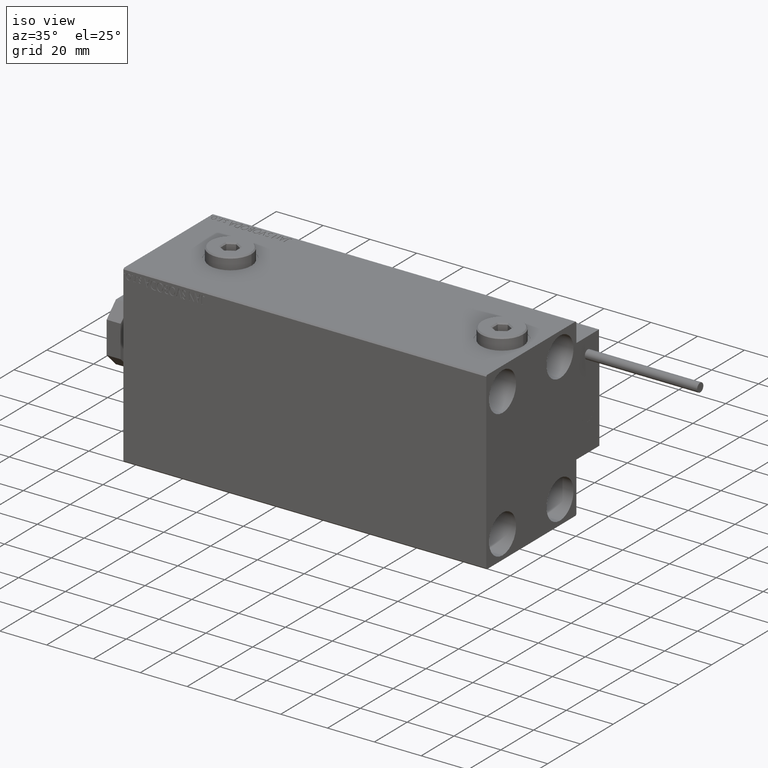
[diagram: clean part render]
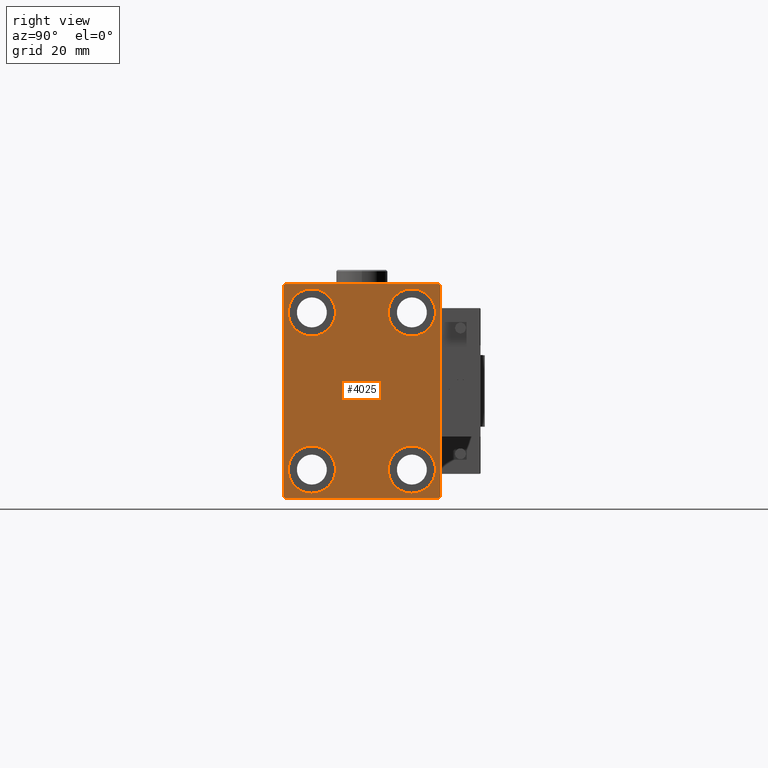
[diagram: tour spotlight — one face highlighted and labeled with its STEP entity id]
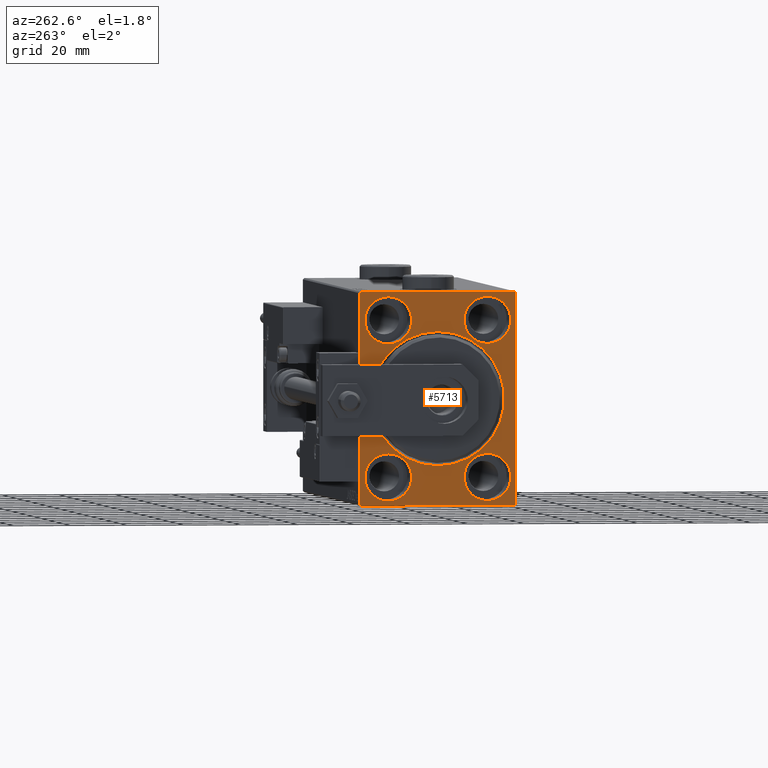
[diagram: tour spotlight — one face highlighted and labeled with its STEP entity id]
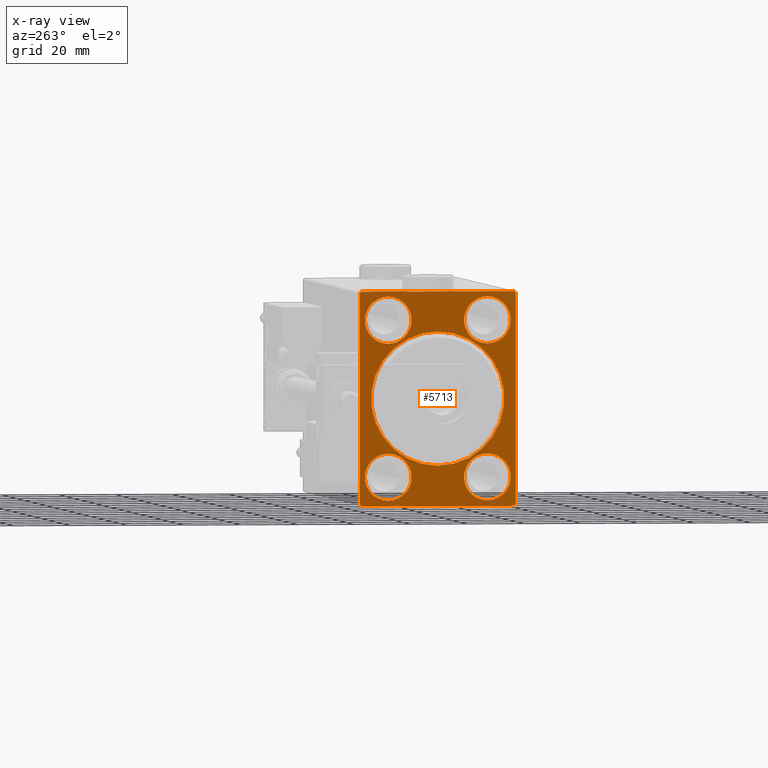
[diagram: x-ray of the same camera — body ghosted, this tour face saturated]
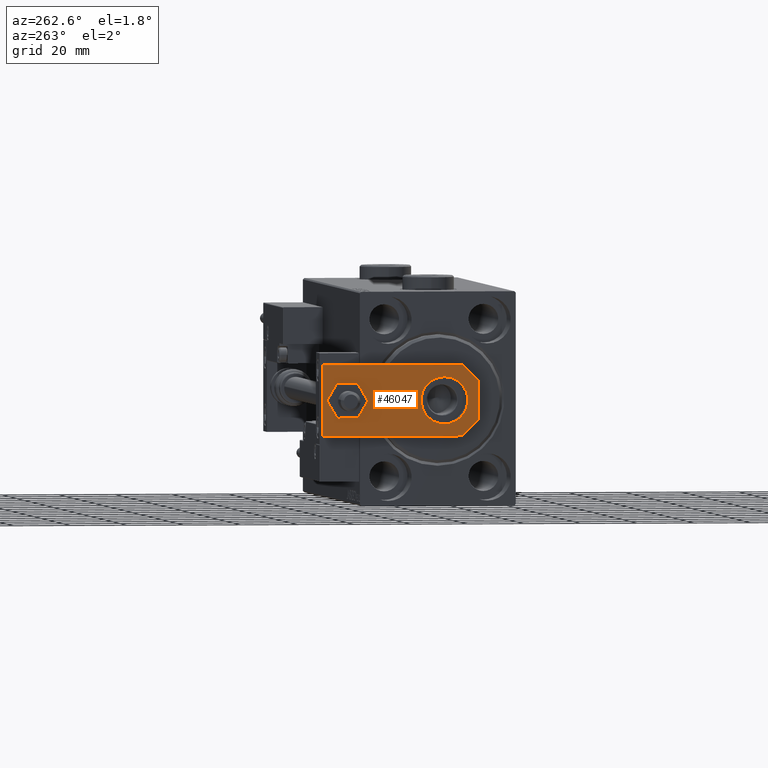
[diagram: tour spotlight — one face highlighted and labeled with its STEP entity id]
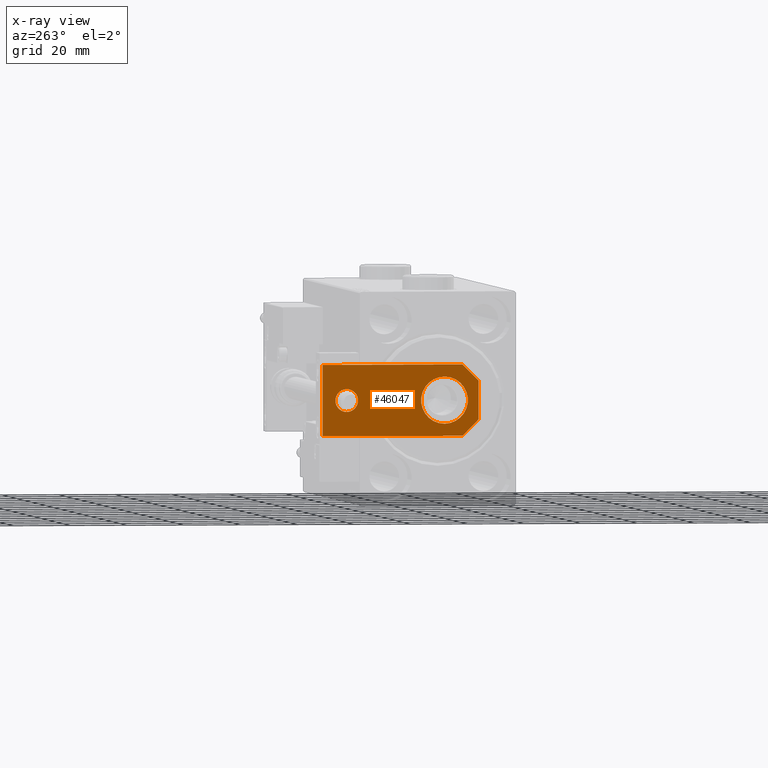
[diagram: x-ray of the same camera — body ghosted, this tour face saturated]
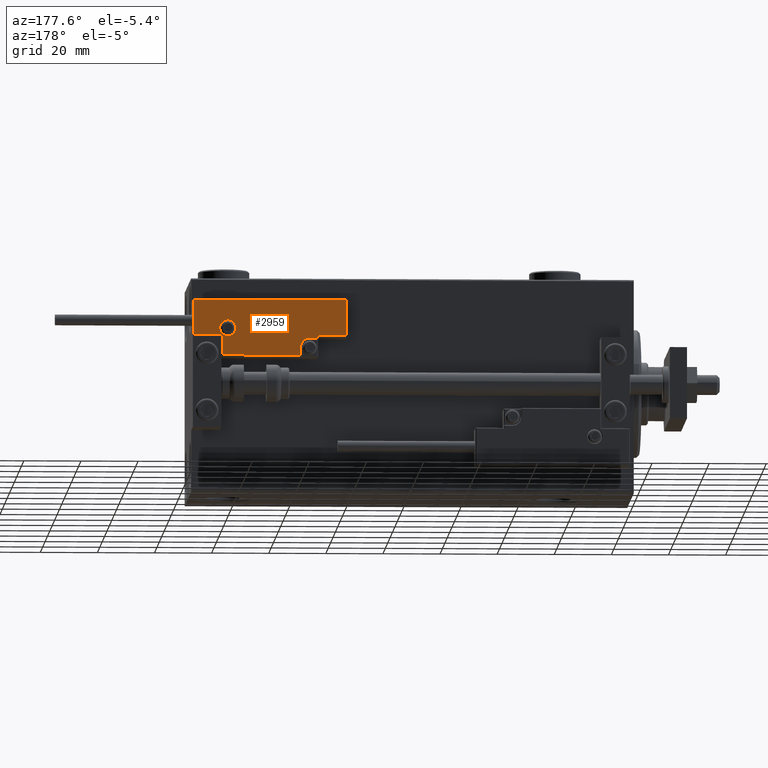
[diagram: tour spotlight — one face highlighted and labeled with its STEP entity id]
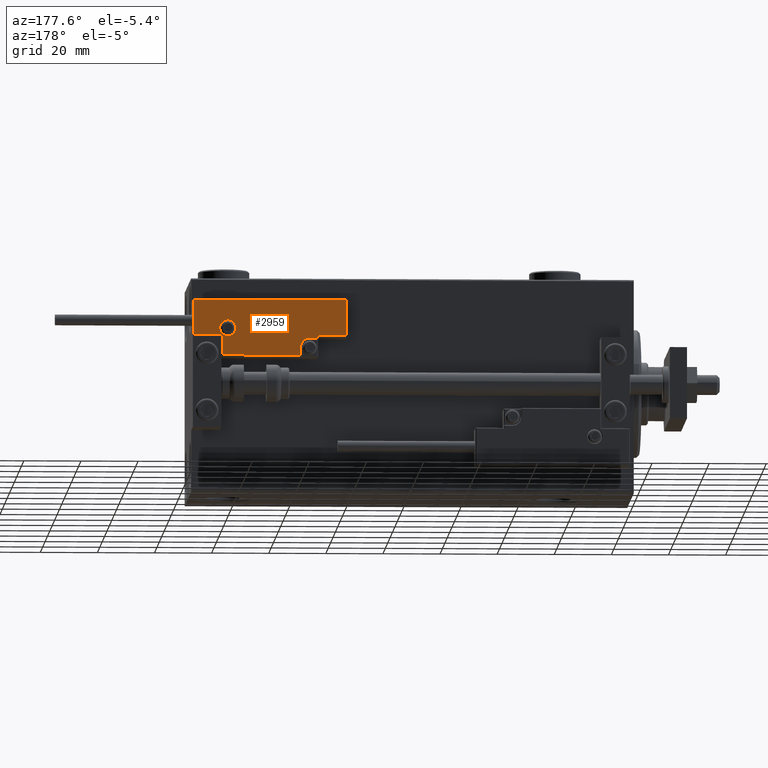
[diagram: tour spotlight — one face highlighted and labeled with its STEP entity id]
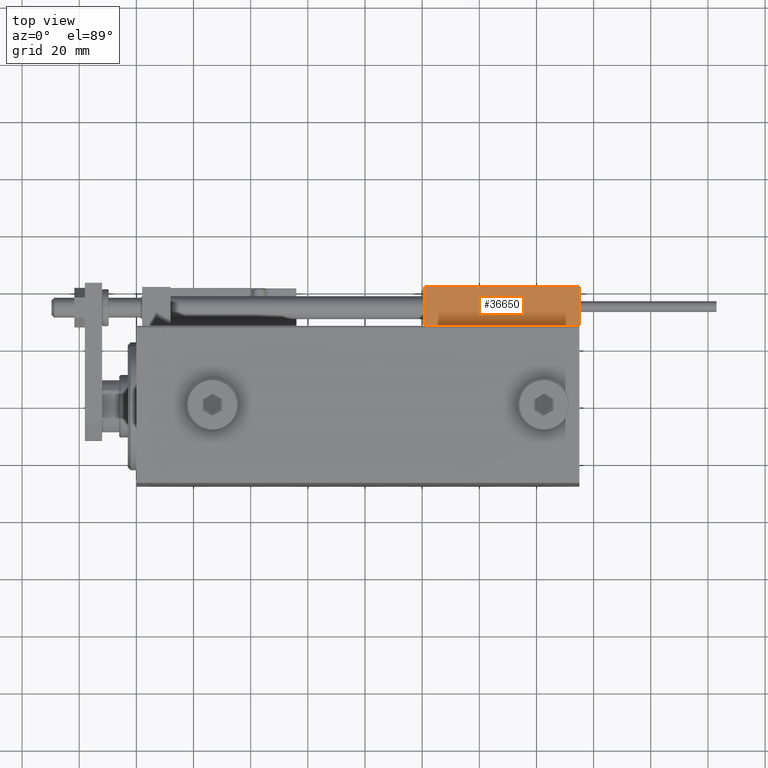
[diagram: tour spotlight — one face highlighted and labeled with its STEP entity id]
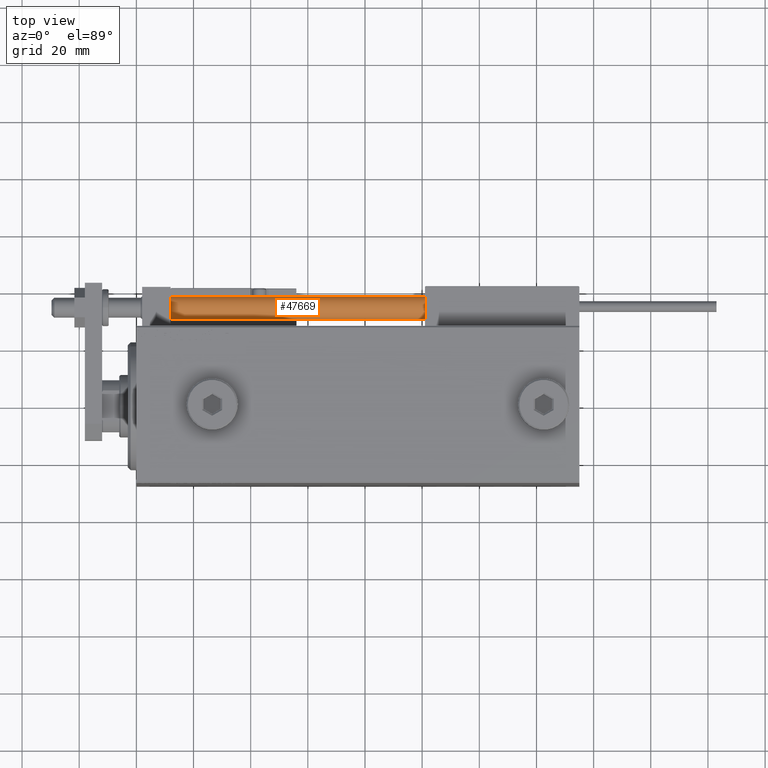
[diagram: tour spotlight — one face highlighted and labeled with its STEP entity id]
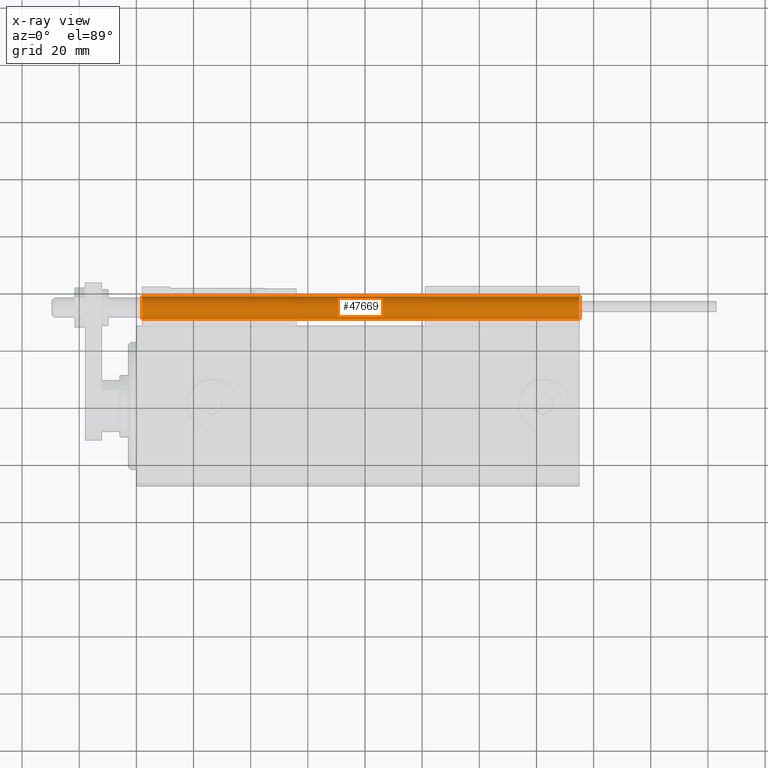
[diagram: x-ray of the same camera — body ghosted, this tour face saturated]
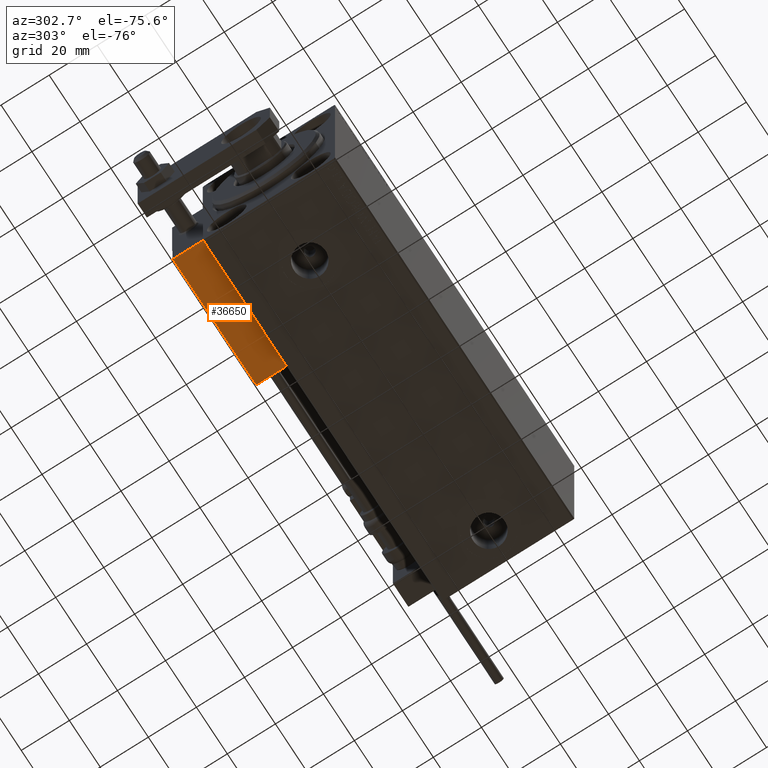
[diagram: tour spotlight — one face highlighted and labeled with its STEP entity id]
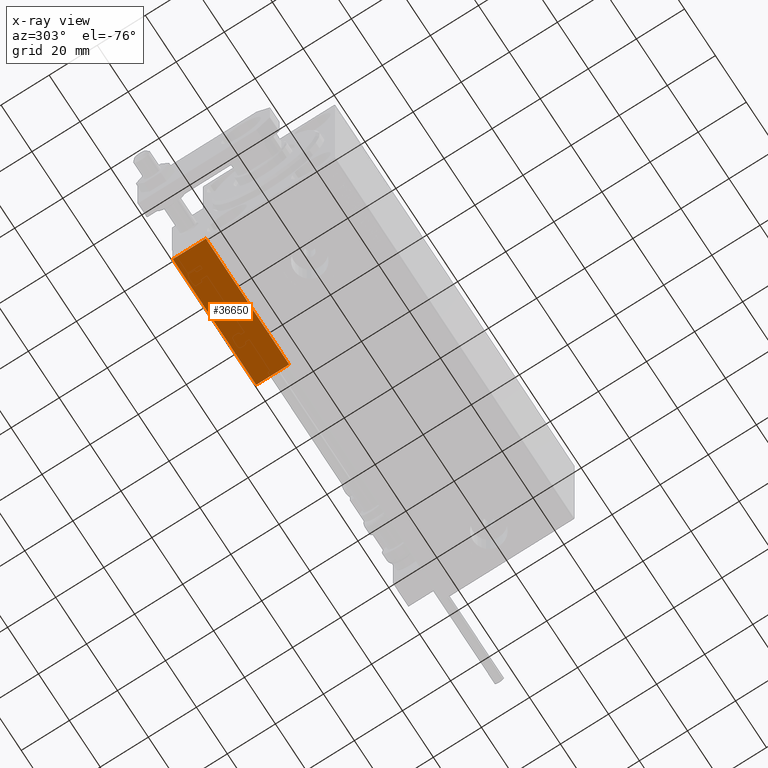
[diagram: x-ray of the same camera — body ghosted, this tour face saturated]
A machine part: a face-by-face anatomy tour. The part has 1336 B-rep faces; the first image is the clean iso view, then the 8 largest visible faces are spotlighted one at a time (largest first), each with its STEP entity span.

Face 1 — right view, entity #4025. In plain terms, the highlighted planar face has unit normal (1, 0, 0).
Definition (entity closure, byte-faithful):
#138 = DIRECTION ( 'NONE',  ( 0.000000000000000000, -1.000000000000000000, -1.261617073437677999E-16 ) ) ;
#840 = EDGE_CURVE ( 'NONE', #31138, #10691, #43091, .T. ) ;
#976 = EDGE_CURVE ( 'NONE', #5885, #40719, #48790, .T. ) ;
#1370 = CARTESIAN_POINT ( 'NONE',  ( 155.0000000000000000, 17.50000000000000355, 27.49999999999999645 ) ) ;
#1505 = CARTESIAN_POINT ( 'NONE',  ( 155.0000000000000000, -27.50000000000000355, 37.50000000000000000 ) ) ;
#1888 = DIRECTION ( 'NONE',  ( 0.000000000000000000, 0.000000000000000000, 1.000000000000000000 ) ) ;
#2128 = CIRCLE ( 'NONE', #35451, 8.249999999999992895 ) ;
#2802 = VERTEX_POINT ( 'NONE', #42650 ) ;
#2869 = DIRECTION ( 'NONE',  ( -1.000000000000000000, -0.000000000000000000, -0.000000000000000000 ) ) ;
#3262 = ORIENTED_EDGE ( 'NONE', *, *, #9814, .T. ) ;
#3732 = LINE ( 'NONE', #19633, #40064 ) ;
#3770 = FACE_BOUND ( 'NONE', #19732, .T. ) ;
#3899 = CIRCLE ( 'NONE', #33016, 8.249999999999992895 ) ;
#4023 = EDGE_CURVE ( 'NONE', #29492, #39121, #42222, .T. ) ;
#4025 = ADVANCED_FACE ( 'NONE', ( #27494, #43407, #39488, #3770, #27761 ), #40005, .T. ) ;
#5885 = VERTEX_POINT ( 'NONE', #32759 ) ;
#6376 = DIRECTION ( 'NONE',  ( -1.000000000000000000, -0.000000000000000000, -0.000000000000000000 ) ) ;
#7531 = AXIS2_PLACEMENT_3D ( 'NONE', #18334, #21734, #33963 ) ;
#7861 = LINE ( 'NONE', #23760, #26417 ) ;
#8301 = ORIENTED_EDGE ( 'NONE', *, *, #14531, .T. ) ;
#8346 = AXIS2_PLACEMENT_3D ( 'NONE', #21025, #32486, #41082 ) ;
#8406 = ORIENTED_EDGE ( 'NONE', *, *, #13189, .T. ) ;
#8440 = ORIENTED_EDGE ( 'NONE', *, *, #840, .T. ) ;
#9753 = ORIENTED_EDGE ( 'NONE', *, *, #4023, .T. ) ;
#9814 = EDGE_CURVE ( 'NONE', #13371, #45047, #31914, .T. ) ;
#9936 = DIRECTION ( 'NONE',  ( 0.000000000000000000, 1.000000000000000000, 0.000000000000000000 ) ) ;
#9966 = CARTESIAN_POINT ( 'NONE',  ( 155.0000000000000000, 17.49999999999999645, -27.50000000000000355 ) ) ;
#10476 = CIRCLE ( 'NONE', #47089, 8.250000000000000000 ) ;
#10691 = VERTEX_POINT ( 'NONE', #36605 ) ;
#10748 = EDGE_CURVE ( 'NONE', #39121, #29492, #39994, .T. ) ;
#11594 = DIRECTION ( 'NONE',  ( -1.000000000000000000, -0.000000000000000000, -0.000000000000000000 ) ) ;
#12221 = CARTESIAN_POINT ( 'NONE',  ( 155.0000000000000000, -17.50000000000000355, -19.25000000000000355 ) ) ;
#12369 = DIRECTION ( 'NONE',  ( 1.000000000000000000, 0.000000000000000000, 0.000000000000000000 ) ) ;
#13189 = EDGE_CURVE ( 'NONE', #45047, #13819, #3732, .T. ) ;
#13357 = CARTESIAN_POINT ( 'NONE',  ( 155.0000000000000000, -27.00000000000003197, 37.50000000000000000 ) ) ;
#13371 = VERTEX_POINT ( 'NONE', #41748 ) ;
#13502 = DIRECTION ( 'NONE',  ( 0.000000000000000000, 0.000000000000000000, -1.000000000000000000 ) ) ;
#13819 = VERTEX_POINT ( 'NONE', #48849 ) ;
#14065 = EDGE_CURVE ( 'NONE', #23330, #13371, #14381, .T. ) ;
#14381 = LINE ( 'NONE', #29730, #48422 ) ;
#14531 = EDGE_CURVE ( 'NONE', #23593, #2802, #17503, .T. ) ;
#14988 = CARTESIAN_POINT ( 'NONE',  ( 155.0000000000000000, -17.50000000000000355, -27.50000000000000355 ) ) ;
#15833 = CARTESIAN_POINT ( 'NONE',  ( 155.0000000000000000, -27.00000000000000355, -37.50000000000000000 ) ) ;
#15961 = DIRECTION ( 'NONE',  ( -0.000000000000000000, -0.7071067811865721087, 0.7071067811865230368 ) ) ;
#15973 = VERTEX_POINT ( 'NONE', #13357 ) ;
#16491 = VECTOR ( 'NONE', #33602, 1000.000000000000114 ) ;
#17503 = CIRCLE ( 'NONE', #8346, 8.249999999999992895 ) ;
#17722 = LINE ( 'NONE', #41965, #16491 ) ;
#18284 = CARTESIAN_POINT ( 'NONE',  ( 155.0000000000000000, -17.49999999999999645, 19.25000000000000000 ) ) ;
#18334 = CARTESIAN_POINT ( 'NONE',  ( 155.0000000000000000, -17.50000000000000355, -27.50000000000000355 ) ) ;
#18514 = ORIENTED_EDGE ( 'NONE', *, *, #35738, .T. ) ;
#18551 = DIRECTION ( 'NONE',  ( 0.000000000000000000, -0.7071067811865279218, -0.7071067811865671127 ) ) ;
#19039 = DIRECTION ( 'NONE',  ( 0.000000000000000000, 0.000000000000000000, 1.000000000000000000 ) ) ;
#19633 = CARTESIAN_POINT ( 'NONE',  ( 155.0000000000000000, 27.50000000000000355, -37.50000000000000000 ) ) ;
#19667 = AXIS2_PLACEMENT_3D ( 'NONE', #9966, #33430, #49832 ) ;
#19732 = EDGE_LOOP ( 'NONE', ( #9753, #45427 ) ) ;
#19951 = CARTESIAN_POINT ( 'NONE',  ( 155.0000000000000000, 27.49999999999999645, 37.50000000000000711 ) ) ;
#20245 = CARTESIAN_POINT ( 'NONE',  ( 155.0000000000000000, 27.50000000000000355, -37.00000000000002842 ) ) ;
#21025 = CARTESIAN_POINT ( 'NONE',  ( 155.0000000000000000, -17.49999999999999645, 27.49999999999999645 ) ) ;
#21734 = DIRECTION ( 'NONE',  ( -1.000000000000000000, -0.000000000000000000, -0.000000000000000000 ) ) ;
#22847 = CARTESIAN_POINT ( 'NONE',  ( 155.0000000000000000, -27.50000000000000355, -37.00000000000000000 ) ) ;
#23315 = VECTOR ( 'NONE', #36334, 1000.000000000000114 ) ;
#23330 = VERTEX_POINT ( 'NONE', #15833 ) ;
#23593 = VERTEX_POINT ( 'NONE', #18284 ) ;
#23760 = CARTESIAN_POINT ( 'NONE',  ( 155.0000000000000000, 32.24999999999906208, 32.25000000000130029 ) ) ;
#23838 = DIRECTION ( 'NONE',  ( 0.000000000000000000, 0.000000000000000000, -1.000000000000000000 ) ) ;
#23851 = VECTOR ( 'NONE', #138, 1000.000000000000000 ) ;
#24613 = CARTESIAN_POINT ( 'NONE',  ( 155.0000000000000000, 0.000000000000000000, 0.000000000000000000 ) ) ;
#25409 = ORIENTED_EDGE ( 'NONE', *, *, #35141, .T. ) ;
#25892 = ORIENTED_EDGE ( 'NONE', *, *, #14065, .T. ) ;
#26259 = VECTOR ( 'NONE', #18551, 1000.000000000000000 ) ;
#26417 = VECTOR ( 'NONE', #15961, 999.9999999999998863 ) ;
#26980 = CARTESIAN_POINT ( 'NONE',  ( 155.0000000000000000, 17.49999999999999645, -19.25000000000000355 ) ) ;
#27494 = FACE_BOUND ( 'NONE', #42587, .T. ) ;
#27761 = FACE_OUTER_BOUND ( 'NONE', #38646, .T. ) ;
#28452 = EDGE_LOOP ( 'NONE', ( #25409, #8440 ) ) ;
#28563 = EDGE_LOOP ( 'NONE', ( #8301, #43773 ) ) ;
#28899 = VERTEX_POINT ( 'NONE', #38880 ) ;
#29492 = VERTEX_POINT ( 'NONE', #44487 ) ;
#29730 = CARTESIAN_POINT ( 'NONE',  ( 155.0000000000000000, -27.50000000000000355, -37.50000000000000000 ) ) ;
#29752 = AXIS2_PLACEMENT_3D ( 'NONE', #24613, #12369, #23838 ) ;
#31038 = LINE ( 'NONE', #51107, #26259 ) ;
#31138 = VERTEX_POINT ( 'NONE', #35786 ) ;
#31587 = ORIENTED_EDGE ( 'NONE', *, *, #976, .T. ) ;
#31914 = LINE ( 'NONE', #36595, #23315 ) ;
#32198 = EDGE_CURVE ( 'NONE', #50148, #38055, #32545, .T. ) ;
#32486 = DIRECTION ( 'NONE',  ( -1.000000000000000000, -0.000000000000000000, -0.000000000000000000 ) ) ;
#32545 = LINE ( 'NONE', #1505, #47815 ) ;
#32759 = CARTESIAN_POINT ( 'NONE',  ( 155.0000000000000000, 17.49999999999999645, -35.75000000000000711 ) ) ;
#33016 = AXIS2_PLACEMENT_3D ( 'NONE', #33235, #6376, #49386 ) ;
#33235 = CARTESIAN_POINT ( 'NONE',  ( 155.0000000000000000, -17.49999999999999645, 27.49999999999999645 ) ) ;
#33430 = DIRECTION ( 'NONE',  ( -1.000000000000000000, -0.000000000000000000, -0.000000000000000000 ) ) ;
#33602 = DIRECTION ( 'NONE',  ( -0.000000000000000000, 0.7071067811865474617, -0.7071067811865474617 ) ) ;
#33963 = DIRECTION ( 'NONE',  ( 0.000000000000000000, 0.000000000000000000, 1.000000000000000000 ) ) ;
#34430 = EDGE_CURVE ( 'NONE', #15973, #50148, #31038, .T. ) ;
#34707 = EDGE_CURVE ( 'NONE', #40719, #5885, #10476, .T. ) ;
#34973 = ORIENTED_EDGE ( 'NONE', *, *, #38894, .T. ) ;
#35141 = EDGE_CURVE ( 'NONE', #10691, #31138, #2128, .T. ) ;
#35451 = AXIS2_PLACEMENT_3D ( 'NONE', #42514, #2869, #19039 ) ;
#35738 = EDGE_CURVE ( 'NONE', #28899, #15973, #47831, .T. ) ;
#35786 = CARTESIAN_POINT ( 'NONE',  ( 155.0000000000000000, 17.50000000000000355, 35.74999999999999289 ) ) ;
#36334 = DIRECTION ( 'NONE',  ( -0.000000000000000000, 0.7071067811865474617, 0.7071067811865474617 ) ) ;
#36371 = DIRECTION ( 'NONE',  ( 0.000000000000000000, 0.000000000000000000, 1.000000000000000000 ) ) ;
#36595 = CARTESIAN_POINT ( 'NONE',  ( 155.0000000000000000, 32.25000000000001421, -32.25000000000001421 ) ) ;
#36605 = CARTESIAN_POINT ( 'NONE',  ( 155.0000000000000000, 17.50000000000000355, 19.25000000000000000 ) ) ;
#37565 = CARTESIAN_POINT ( 'NONE',  ( 155.0000000000000000, -27.50000000000000355, 37.00000000000000000 ) ) ;
#37823 = ORIENTED_EDGE ( 'NONE', *, *, #34430, .T. ) ;
#38055 = VERTEX_POINT ( 'NONE', #22847 ) ;
#38646 = EDGE_LOOP ( 'NONE', ( #18514, #37823, #44924, #34973, #25892, #3262, #8406, #45007 ) ) ;
#38664 = EDGE_CURVE ( 'NONE', #13819, #28899, #7861, .T. ) ;
#38880 = CARTESIAN_POINT ( 'NONE',  ( 155.0000000000000000, 26.99999999999999645, 37.50000000000000711 ) ) ;
#38894 = EDGE_CURVE ( 'NONE', #38055, #23330, #17722, .T. ) ;
#39121 = VERTEX_POINT ( 'NONE', #12221 ) ;
#39236 = DIRECTION ( 'NONE',  ( 0.000000000000000000, 0.000000000000000000, 1.000000000000000000 ) ) ;
#39488 = FACE_BOUND ( 'NONE', #28452, .T. ) ;
#39994 = CIRCLE ( 'NONE', #7531, 8.250000000000000000 ) ;
#40005 = PLANE ( 'NONE',  #29752 ) ;
#40064 = VECTOR ( 'NONE', #48532, 1000.000000000000000 ) ;
#40376 = ORIENTED_EDGE ( 'NONE', *, *, #34707, .T. ) ;
#40562 = EDGE_CURVE ( 'NONE', #2802, #23593, #3899, .T. ) ;
#40591 = AXIS2_PLACEMENT_3D ( 'NONE', #1370, #49325, #1888 ) ;
#40719 = VERTEX_POINT ( 'NONE', #26980 ) ;
#40810 = CARTESIAN_POINT ( 'NONE',  ( 155.0000000000000000, 17.49999999999999645, -27.50000000000000355 ) ) ;
#41082 = DIRECTION ( 'NONE',  ( 0.000000000000000000, 0.000000000000000000, 1.000000000000000000 ) ) ;
#41748 = CARTESIAN_POINT ( 'NONE',  ( 155.0000000000000000, 27.00000000000003197, -37.50000000000000000 ) ) ;
#41965 = CARTESIAN_POINT ( 'NONE',  ( 155.0000000000000000, -32.25000000000000000, -32.25000000000000000 ) ) ;
#42222 = CIRCLE ( 'NONE', #51403, 8.250000000000000000 ) ;
#42514 = CARTESIAN_POINT ( 'NONE',  ( 155.0000000000000000, 17.50000000000000355, 27.49999999999999645 ) ) ;
#42587 = EDGE_LOOP ( 'NONE', ( #31587, #40376 ) ) ;
#42650 = CARTESIAN_POINT ( 'NONE',  ( 155.0000000000000000, -17.49999999999999645, 35.74999999999999289 ) ) ;
#43091 = CIRCLE ( 'NONE', #40591, 8.249999999999992895 ) ;
#43407 = FACE_BOUND ( 'NONE', #28563, .T. ) ;
#43773 = ORIENTED_EDGE ( 'NONE', *, *, #40562, .T. ) ;
#44487 = CARTESIAN_POINT ( 'NONE',  ( 155.0000000000000000, -17.50000000000000355, -35.75000000000000711 ) ) ;
#44924 = ORIENTED_EDGE ( 'NONE', *, *, #32198, .T. ) ;
#44968 = DIRECTION ( 'NONE',  ( -1.000000000000000000, -0.000000000000000000, -0.000000000000000000 ) ) ;
#45007 = ORIENTED_EDGE ( 'NONE', *, *, #38664, .T. ) ;
#45047 = VERTEX_POINT ( 'NONE', #20245 ) ;
#45427 = ORIENTED_EDGE ( 'NONE', *, *, #10748, .T. ) ;
#47089 = AXIS2_PLACEMENT_3D ( 'NONE', #40810, #44968, #36371 ) ;
#47815 = VECTOR ( 'NONE', #13502, 1000.000000000000000 ) ;
#47831 = LINE ( 'NONE', #19951, #23851 ) ;
#48422 = VECTOR ( 'NONE', #9936, 1000.000000000000000 ) ;
#48532 = DIRECTION ( 'NONE',  ( 0.000000000000000000, -9.251858538542970348E-17, 1.000000000000000000 ) ) ;
#48790 = CIRCLE ( 'NONE', #19667, 8.250000000000000000 ) ;
#48849 = CARTESIAN_POINT ( 'NONE',  ( 155.0000000000000000, 27.49999999999999645, 37.00000000000004263 ) ) ;
#49325 = DIRECTION ( 'NONE',  ( -1.000000000000000000, -0.000000000000000000, -0.000000000000000000 ) ) ;
#49386 = DIRECTION ( 'NONE',  ( 0.000000000000000000, 0.000000000000000000, 1.000000000000000000 ) ) ;
#49832 = DIRECTION ( 'NONE',  ( 0.000000000000000000, 0.000000000000000000, 1.000000000000000000 ) ) ;
#50148 = VERTEX_POINT ( 'NONE', #37565 ) ;
#51107 = CARTESIAN_POINT ( 'NONE',  ( 155.0000000000000000, -32.25000000000076028, 32.24999999999897682 ) ) ;
#51403 = AXIS2_PLACEMENT_3D ( 'NONE', #14988, #11594, #39236 ) ;

Face 2 — auxiliary view, entity #5713. An x-ray twin of the same camera follows (body ghosted, this face saturated) — the face is partly hidden behind the body. In plain terms, the highlighted planar face has unit normal (1, 0, 0).
Definition (entity closure, byte-faithful):
#731 = CIRCLE ( 'NONE', #14038, 8.250000000000000000 ) ;
#817 = CARTESIAN_POINT ( 'NONE',  ( 0.000000000000000000, 0.000000000000000000, 0.000000000000000000 ) ) ;
#1094 = ORIENTED_EDGE ( 'NONE', *, *, #30801, .F. ) ;
#1390 = EDGE_CURVE ( 'NONE', #13554, #18373, #42506, .T. ) ;
#1541 = AXIS2_PLACEMENT_3D ( 'NONE', #2992, #46530, #43162 ) ;
#2246 = EDGE_CURVE ( 'NONE', #7033, #12378, #30237, .T. ) ;
#2302 = LINE ( 'NONE', #17942, #41213 ) ;
#2334 = VERTEX_POINT ( 'NONE', #43796 ) ;
#2817 = FACE_BOUND ( 'NONE', #51183, .T. ) ;
#2992 = CARTESIAN_POINT ( 'NONE',  ( 0.000000000000000000, -17.49999999999999645, 27.49999999999999645 ) ) ;
#3363 = CARTESIAN_POINT ( 'NONE',  ( 0.000000000000000000, -17.50000000000000355, -35.75000000000000711 ) ) ;
#3728 = DIRECTION ( 'NONE',  ( 0.000000000000000000, 0.000000000000000000, 1.000000000000000000 ) ) ;
#3927 = CARTESIAN_POINT ( 'NONE',  ( 0.000000000000000000, -27.00000000000003197, 37.50000000000000000 ) ) ;
#4911 = CARTESIAN_POINT ( 'NONE',  ( 0.000000000000000000, 27.50000000000000355, -37.00000000000002842 ) ) ;
#4960 = DIRECTION ( 'NONE',  ( 0.000000000000000000, 1.000000000000000000, 0.000000000000000000 ) ) ;
#5308 = CARTESIAN_POINT ( 'NONE',  ( 0.000000000000000000, -17.50000000000000355, -27.50000000000000355 ) ) ;
#5626 = AXIS2_PLACEMENT_3D ( 'NONE', #817, #12807, #36783 ) ;
#5713 = ADVANCED_FACE ( 'NONE', ( #38544, #2817, #18722, #34607, #46867, #42967 ), #47119, .F. ) ;
#6074 = EDGE_CURVE ( 'NONE', #7014, #24377, #30621, .T. ) ;
#7014 = VERTEX_POINT ( 'NONE', #26590 ) ;
#7033 = VERTEX_POINT ( 'NONE', #4911 ) ;
#7216 = VERTEX_POINT ( 'NONE', #39034 ) ;
#7518 = EDGE_CURVE ( 'NONE', #34730, #2334, #19073, .T. ) ;
#7743 = CIRCLE ( 'NONE', #31853, 23.50000000000001776 ) ;
#7761 = DIRECTION ( 'NONE',  ( -1.000000000000000000, 0.000000000000000000, 0.000000000000000000 ) ) ;
#8336 = CARTESIAN_POINT ( 'NONE',  ( 0.000000000000000000, 26.99999999999999645, 37.50000000000000711 ) ) ;
#8556 = ORIENTED_EDGE ( 'NONE', *, *, #27185, .T. ) ;
#8805 = ORIENTED_EDGE ( 'NONE', *, *, #36630, .T. ) ;
#9077 = CARTESIAN_POINT ( 'NONE',  ( 0.000000000000000000, -27.50000000000000355, 37.50000000000000000 ) ) ;
#9205 = EDGE_CURVE ( 'NONE', #10214, #11205, #47937, .T. ) ;
#10214 = VERTEX_POINT ( 'NONE', #10372 ) ;
#10372 = CARTESIAN_POINT ( 'NONE',  ( 0.000000000000000000, -27.50000000000000355, 37.00000000000000000 ) ) ;
#10540 = VERTEX_POINT ( 'NONE', #23076 ) ;
#10623 = CIRCLE ( 'NONE', #18103, 8.250000000000000000 ) ;
#11164 = CARTESIAN_POINT ( 'NONE',  ( 0.000000000000000000, 0.000000000000000000, 0.000000000000000000 ) ) ;
#11205 = VERTEX_POINT ( 'NONE', #14104 ) ;
#12378 = VERTEX_POINT ( 'NONE', #20148 ) ;
#12418 = AXIS2_PLACEMENT_3D ( 'NONE', #25687, #30543, #49390 ) ;
#12807 = DIRECTION ( 'NONE',  ( 1.000000000000000000, 0.000000000000000000, 0.000000000000000000 ) ) ;
#12984 = EDGE_LOOP ( 'NONE', ( #46157, #23388, #21668, #42820, #26971, #25896, #37131, #8805 ) ) ;
#13306 = CARTESIAN_POINT ( 'NONE',  ( 0.000000000000000000, -17.50000000000000355, -19.25000000000000355 ) ) ;
#13554 = VERTEX_POINT ( 'NONE', #8336 ) ;
#13560 = CARTESIAN_POINT ( 'NONE',  ( 0.000000000000000000, -27.50000000000000355, 37.00000000000000000 ) ) ;
#13958 = ORIENTED_EDGE ( 'NONE', *, *, #42072, .T. ) ;
#14038 = AXIS2_PLACEMENT_3D ( 'NONE', #38734, #26756, #41883 ) ;
#14104 = CARTESIAN_POINT ( 'NONE',  ( 0.000000000000000000, -27.50000000000000355, -37.00000000000000000 ) ) ;
#16380 = AXIS2_PLACEMENT_3D ( 'NONE', #40915, #44561, #3728 ) ;
#17010 = CIRCLE ( 'NONE', #26159, 8.250000000000000000 ) ;
#17064 = DIRECTION ( 'NONE',  ( -0.000000000000000000, -0.7071067811865474617, 0.7071067811865474617 ) ) ;
#17942 = CARTESIAN_POINT ( 'NONE',  ( 0.000000000000000000, 27.50000000000000355, -37.50000000000000000 ) ) ;
#18022 = VECTOR ( 'NONE', #49009, 1000.000000000000000 ) ;
#18103 = AXIS2_PLACEMENT_3D ( 'NONE', #37669, #29823, #22292 ) ;
#18246 = CARTESIAN_POINT ( 'NONE',  ( 0.000000000000000000, 27.49999999999999645, 37.50000000000000711 ) ) ;
#18257 = CARTESIAN_POINT ( 'NONE',  ( 0.000000000000000000, 27.50000000000000355, -37.00000000000002842 ) ) ;
#18373 = VERTEX_POINT ( 'NONE', #3927 ) ;
#18722 = FACE_BOUND ( 'NONE', #31056, .T. ) ;
#19073 = CIRCLE ( 'NONE', #12418, 8.249999999999992895 ) ;
#19274 = ORIENTED_EDGE ( 'NONE', *, *, #43856, .F. ) ;
#19477 = EDGE_LOOP ( 'NONE', ( #8556, #13958 ) ) ;
#19684 = VECTOR ( 'NONE', #17064, 1000.000000000000114 ) ;
#20148 = CARTESIAN_POINT ( 'NONE',  ( 0.000000000000000000, 27.00000000000003197, -37.50000000000000000 ) ) ;
#20727 = DIRECTION ( 'NONE',  ( 0.000000000000000000, 0.000000000000000000, 1.000000000000000000 ) ) ;
#20875 = CARTESIAN_POINT ( 'NONE',  ( 0.000000000000000000, -27.50000000000000355, -37.50000000000000000 ) ) ;
#21488 = AXIS2_PLACEMENT_3D ( 'NONE', #35332, #47587, #47842 ) ;
#21617 = EDGE_CURVE ( 'NONE', #23253, #12378, #48491, .T. ) ;
#21668 = ORIENTED_EDGE ( 'NONE', *, *, #1390, .F. ) ;
#21836 = VECTOR ( 'NONE', #23126, 999.9999999999998863 ) ;
#22054 = ORIENTED_EDGE ( 'NONE', *, *, #47741, .F. ) ;
#22149 = VECTOR ( 'NONE', #34140, 1000.000000000000000 ) ;
#22224 = CIRCLE ( 'NONE', #45507, 8.249999999999992895 ) ;
#22292 = DIRECTION ( 'NONE',  ( 0.000000000000000000, 0.000000000000000000, 1.000000000000000000 ) ) ;
#22824 = VERTEX_POINT ( 'NONE', #13306 ) ;
#23076 = CARTESIAN_POINT ( 'NONE',  ( 0.000000000000000000, 27.49999999999999645, 37.00000000000004263 ) ) ;
#23126 = DIRECTION ( 'NONE',  ( -0.000000000000000000, 0.7071067811865721087, -0.7071067811865230368 ) ) ;
#23253 = VERTEX_POINT ( 'NONE', #49439 ) ;
#23388 = ORIENTED_EDGE ( 'NONE', *, *, #39731, .T. ) ;
#23469 = DIRECTION ( 'NONE',  ( 0.000000000000000000, -0.7071067811865474617, -0.7071067811865474617 ) ) ;
#24377 = VERTEX_POINT ( 'NONE', #32901 ) ;
#24628 = DIRECTION ( 'NONE',  ( -1.000000000000000000, 0.000000000000000000, 0.000000000000000000 ) ) ;
#25687 = CARTESIAN_POINT ( 'NONE',  ( 0.000000000000000000, 17.50000000000000355, 27.49999999999999645 ) ) ;
#25896 = ORIENTED_EDGE ( 'NONE', *, *, #2246, .T. ) ;
#26059 = EDGE_CURVE ( 'NONE', #13554, #10540, #43723, .T. ) ;
#26159 = AXIS2_PLACEMENT_3D ( 'NONE', #5308, #24628, #20727 ) ;
#26590 = CARTESIAN_POINT ( 'NONE',  ( 0.000000000000000000, 17.49999999999999645, -19.25000000000000355 ) ) ;
#26756 = DIRECTION ( 'NONE',  ( -1.000000000000000000, 0.000000000000000000, 0.000000000000000000 ) ) ;
#26815 = DIRECTION ( 'NONE',  ( 1.000000000000000000, 0.000000000000000000, 0.000000000000000000 ) ) ;
#26971 = ORIENTED_EDGE ( 'NONE', *, *, #32511, .F. ) ;
#27185 = EDGE_CURVE ( 'NONE', #7216, #34095, #7743, .T. ) ;
#29598 = DIRECTION ( 'NONE',  ( 1.000000000000000000, 0.000000000000000000, 0.000000000000000000 ) ) ;
#29823 = DIRECTION ( 'NONE',  ( -1.000000000000000000, 0.000000000000000000, 0.000000000000000000 ) ) ;
#30237 = LINE ( 'NONE', #18257, #38822 ) ;
#30543 = DIRECTION ( 'NONE',  ( -1.000000000000000000, 0.000000000000000000, 0.000000000000000000 ) ) ;
#30621 = CIRCLE ( 'NONE', #21488, 8.250000000000000000 ) ;
#30801 = EDGE_CURVE ( 'NONE', #39063, #22824, #17010, .T. ) ;
#30857 = VERTEX_POINT ( 'NONE', #44437 ) ;
#31056 = EDGE_LOOP ( 'NONE', ( #19274, #32035 ) ) ;
#31186 = CARTESIAN_POINT ( 'NONE',  ( 0.000000000000000000, 26.99999999999999645, 37.50000000000000711 ) ) ;
#31198 = DIRECTION ( 'NONE',  ( 0.000000000000000000, 0.000000000000000000, 1.000000000000000000 ) ) ;
#31853 = AXIS2_PLACEMENT_3D ( 'NONE', #37956, #29598, #46038 ) ;
#32019 = ORIENTED_EDGE ( 'NONE', *, *, #41797, .F. ) ;
#32035 = ORIENTED_EDGE ( 'NONE', *, *, #36113, .F. ) ;
#32511 = EDGE_CURVE ( 'NONE', #7033, #10540, #2302, .T. ) ;
#32901 = CARTESIAN_POINT ( 'NONE',  ( 0.000000000000000000, 17.49999999999999645, -35.75000000000000711 ) ) ;
#33169 = CIRCLE ( 'NONE', #1541, 8.249999999999992895 ) ;
#33706 = LINE ( 'NONE', #36871, #19684 ) ;
#34095 = VERTEX_POINT ( 'NONE', #43122 ) ;
#34140 = DIRECTION ( 'NONE',  ( 0.000000000000000000, -1.000000000000000000, -1.261617073437677999E-16 ) ) ;
#34607 = FACE_BOUND ( 'NONE', #49284, .T. ) ;
#34730 = VERTEX_POINT ( 'NONE', #48363 ) ;
#35244 = ORIENTED_EDGE ( 'NONE', *, *, #7518, .F. ) ;
#35332 = CARTESIAN_POINT ( 'NONE',  ( 0.000000000000000000, 17.49999999999999645, -27.50000000000000355 ) ) ;
#36113 = EDGE_CURVE ( 'NONE', #30857, #37212, #50455, .T. ) ;
#36630 = EDGE_CURVE ( 'NONE', #23253, #11205, #33706, .T. ) ;
#36783 = DIRECTION ( 'NONE',  ( 0.000000000000000000, 0.000000000000000000, -1.000000000000000000 ) ) ;
#36871 = CARTESIAN_POINT ( 'NONE',  ( 0.000000000000000000, -27.00000000000000355, -37.50000000000000000 ) ) ;
#37131 = ORIENTED_EDGE ( 'NONE', *, *, #21617, .F. ) ;
#37212 = VERTEX_POINT ( 'NONE', #47967 ) ;
#37263 = CIRCLE ( 'NONE', #5626, 23.50000000000001776 ) ;
#37669 = CARTESIAN_POINT ( 'NONE',  ( 0.000000000000000000, 17.49999999999999645, -27.50000000000000355 ) ) ;
#37704 = ORIENTED_EDGE ( 'NONE', *, *, #51508, .F. ) ;
#37956 = CARTESIAN_POINT ( 'NONE',  ( 0.000000000000000000, 0.000000000000000000, 0.000000000000000000 ) ) ;
#38544 = FACE_BOUND ( 'NONE', #19477, .T. ) ;
#38734 = CARTESIAN_POINT ( 'NONE',  ( 0.000000000000000000, -17.50000000000000355, -27.50000000000000355 ) ) ;
#38822 = VECTOR ( 'NONE', #23469, 1000.000000000000114 ) ;
#38905 = ORIENTED_EDGE ( 'NONE', *, *, #6074, .F. ) ;
#39034 = CARTESIAN_POINT ( 'NONE',  ( 0.000000000000000000, 0.000000000000000000, 23.50000000000001776 ) ) ;
#39063 = VERTEX_POINT ( 'NONE', #3363 ) ;
#39731 = EDGE_CURVE ( 'NONE', #10214, #18373, #49263, .T. ) ;
#40334 = EDGE_LOOP ( 'NONE', ( #37704, #1094 ) ) ;
#40915 = CARTESIAN_POINT ( 'NONE',  ( 0.000000000000000000, -17.49999999999999645, 27.49999999999999645 ) ) ;
#41213 = VECTOR ( 'NONE', #49475, 1000.000000000000000 ) ;
#41797 = EDGE_CURVE ( 'NONE', #24377, #7014, #10623, .T. ) ;
#41883 = DIRECTION ( 'NONE',  ( 0.000000000000000000, 0.000000000000000000, 1.000000000000000000 ) ) ;
#42072 = EDGE_CURVE ( 'NONE', #34095, #7216, #37263, .T. ) ;
#42506 = LINE ( 'NONE', #18246, #22149 ) ;
#42722 = DIRECTION ( 'NONE',  ( 0.000000000000000000, 0.000000000000000000, -1.000000000000000000 ) ) ;
#42820 = ORIENTED_EDGE ( 'NONE', *, *, #26059, .T. ) ;
#42967 = FACE_OUTER_BOUND ( 'NONE', #12984, .T. ) ;
#43122 = CARTESIAN_POINT ( 'NONE',  ( 0.000000000000000000, 2.877919977996282293E-15, -23.50000000000001776 ) ) ;
#43162 = DIRECTION ( 'NONE',  ( 0.000000000000000000, 0.000000000000000000, 1.000000000000000000 ) ) ;
#43723 = LINE ( 'NONE', #31186, #21836 ) ;
#43796 = CARTESIAN_POINT ( 'NONE',  ( 0.000000000000000000, 17.50000000000000355, 19.25000000000000000 ) ) ;
#43856 = EDGE_CURVE ( 'NONE', #37212, #30857, #33169, .T. ) ;
#44437 = CARTESIAN_POINT ( 'NONE',  ( 0.000000000000000000, -17.49999999999999645, 19.25000000000000000 ) ) ;
#44561 = DIRECTION ( 'NONE',  ( -1.000000000000000000, 0.000000000000000000, 0.000000000000000000 ) ) ;
#45507 = AXIS2_PLACEMENT_3D ( 'NONE', #51014, #7761, #31198 ) ;
#45732 = VECTOR ( 'NONE', #48703, 1000.000000000000000 ) ;
#46038 = DIRECTION ( 'NONE',  ( 0.000000000000000000, 0.000000000000000000, -1.000000000000000000 ) ) ;
#46157 = ORIENTED_EDGE ( 'NONE', *, *, #9205, .F. ) ;
#46447 = AXIS2_PLACEMENT_3D ( 'NONE', #11164, #26815, #42722 ) ;
#46530 = DIRECTION ( 'NONE',  ( -1.000000000000000000, 0.000000000000000000, 0.000000000000000000 ) ) ;
#46867 = FACE_BOUND ( 'NONE', #40334, .T. ) ;
#47119 = PLANE ( 'NONE',  #46447 ) ;
#47587 = DIRECTION ( 'NONE',  ( -1.000000000000000000, 0.000000000000000000, 0.000000000000000000 ) ) ;
#47741 = EDGE_CURVE ( 'NONE', #2334, #34730, #22224, .T. ) ;
#47842 = DIRECTION ( 'NONE',  ( 0.000000000000000000, 0.000000000000000000, 1.000000000000000000 ) ) ;
#47937 = LINE ( 'NONE', #9077, #45732 ) ;
#47967 = CARTESIAN_POINT ( 'NONE',  ( 0.000000000000000000, -17.49999999999999645, 35.74999999999999289 ) ) ;
#48363 = CARTESIAN_POINT ( 'NONE',  ( 0.000000000000000000, 17.50000000000000355, 35.74999999999999289 ) ) ;
#48491 = LINE ( 'NONE', #20875, #49216 ) ;
#48703 = DIRECTION ( 'NONE',  ( 0.000000000000000000, 0.000000000000000000, -1.000000000000000000 ) ) ;
#49009 = DIRECTION ( 'NONE',  ( -0.000000000000000000, 0.7071067811865279218, 0.7071067811865671127 ) ) ;
#49216 = VECTOR ( 'NONE', #4960, 1000.000000000000000 ) ;
#49263 = LINE ( 'NONE', #13560, #18022 ) ;
#49284 = EDGE_LOOP ( 'NONE', ( #35244, #22054 ) ) ;
#49390 = DIRECTION ( 'NONE',  ( 0.000000000000000000, 0.000000000000000000, 1.000000000000000000 ) ) ;
#49439 = CARTESIAN_POINT ( 'NONE',  ( 0.000000000000000000, -27.00000000000000355, -37.50000000000000000 ) ) ;
#49475 = DIRECTION ( 'NONE',  ( 0.000000000000000000, -9.251858538542970348E-17, 1.000000000000000000 ) ) ;
#50455 = CIRCLE ( 'NONE', #16380, 8.249999999999992895 ) ;
#51014 = CARTESIAN_POINT ( 'NONE',  ( 0.000000000000000000, 17.50000000000000355, 27.49999999999999645 ) ) ;
#51183 = EDGE_LOOP ( 'NONE', ( #38905, #32019 ) ) ;
#51508 = EDGE_CURVE ( 'NONE', #22824, #39063, #731, .T. ) ;

Face 3 — auxiliary view, entity #46047. An x-ray twin of the same camera follows (body ghosted, this face saturated) — the face is partly hidden behind the body. In plain terms, the highlighted planar face has unit normal (-1, 0, 0).
Definition (entity closure, byte-faithful):
#326 = CARTESIAN_POINT ( 'NONE',  ( 3.419999999999990603, -3.419999999999999485, 6.000000000000000000 ) ) ;
#404 = DIRECTION ( 'NONE',  ( 1.000000000000000000, 0.000000000000000000, 0.000000000000000000 ) ) ;
#659 = CARTESIAN_POINT ( 'NONE',  ( -1.432611055310774642E-16, 46.50000000000000000, 6.000000000000000000 ) ) ;
#1172 = EDGE_CURVE ( 'NONE', #44723, #51325, #15625, .T. ) ;
#2206 = CARTESIAN_POINT ( 'NONE',  ( -3.420000000000013696, -3.420000000000006146, 6.000000000000000000 ) ) ;
#2329 = CARTESIAN_POINT ( 'NONE',  ( 0.000000000000000000, 0.000000000000000000, 6.000000000000000000 ) ) ;
#2429 = EDGE_LOOP ( 'NONE', ( #12822, #16716 ) ) ;
#4436 = ORIENTED_EDGE ( 'NONE', *, *, #43278, .T. ) ;
#4721 = VERTEX_POINT ( 'NONE', #19820 ) ;
#5233 = DIRECTION ( 'NONE',  ( 0.000000000000000000, 0.000000000000000000, 1.000000000000000000 ) ) ;
#5306 = AXIS2_PLACEMENT_3D ( 'NONE', #34118, #26309, #42218 ) ;
#5782 = ORIENTED_EDGE ( 'NONE', *, *, #15701, .T. ) ;
#5961 = VERTEX_POINT ( 'NONE', #22325 ) ;
#6501 = FACE_BOUND ( 'NONE', #2429, .T. ) ;
#6863 = LINE ( 'NONE', #42337, #44358 ) ;
#7200 = CARTESIAN_POINT ( 'NONE',  ( 12.50000000000000355, 5.659999999999991260, 6.000000000000000000 ) ) ;
#7408 = EDGE_CURVE ( 'NONE', #25142, #20777, #31970, .T. ) ;
#8250 = CARTESIAN_POINT ( 'NONE',  ( -12.50000000000000355, 4.814824860968089633E-32, 6.000000000000000000 ) ) ;
#9940 = CARTESIAN_POINT ( 'NONE',  ( -12.50000000000000355, 5.660000000000005471, 6.000000000000000000 ) ) ;
#11561 = EDGE_CURVE ( 'NONE', #26134, #31254, #44965, .T. ) ;
#12558 = VECTOR ( 'NONE', #43388, 1000.000000000000000 ) ;
#12597 = CARTESIAN_POINT ( 'NONE',  ( -9.629649721936179265E-32, 11.99999999999999645, 6.000000000000000000 ) ) ;
#12822 = ORIENTED_EDGE ( 'NONE', *, *, #1172, .F. ) ;
#13685 = LINE ( 'NONE', #2206, #17782 ) ;
#13747 = EDGE_LOOP ( 'NONE', ( #31964, #14709 ) ) ;
#14449 = LINE ( 'NONE', #46239, #12558 ) ;
#14709 = ORIENTED_EDGE ( 'NONE', *, *, #29275, .F. ) ;
#15047 = ORIENTED_EDGE ( 'NONE', *, *, #7408, .T. ) ;
#15214 = CARTESIAN_POINT ( 'NONE',  ( 12.50000000000000000, 55.00000000000000000, 6.000000000000000000 ) ) ;
#15308 = CIRCLE ( 'NONE', #5306, 4.000000000000000888 ) ;
#15625 = CIRCLE ( 'NONE', #50445, 8.250000000000000000 ) ;
#15701 = EDGE_CURVE ( 'NONE', #16712, #5961, #14449, .T. ) ;
#15939 = EDGE_CURVE ( 'NONE', #51325, #44723, #47500, .T. ) ;
#16067 = DIRECTION ( 'NONE',  ( 0.000000000000000000, 0.000000000000000000, 1.000000000000000000 ) ) ;
#16712 = VERTEX_POINT ( 'NONE', #7200 ) ;
#16716 = ORIENTED_EDGE ( 'NONE', *, *, #15939, .F. ) ;
#16765 = DIRECTION ( 'NONE',  ( 0.000000000000000000, 0.000000000000000000, 1.000000000000000000 ) ) ;
#17325 = VECTOR ( 'NONE', #32622, 1000.000000000000114 ) ;
#17738 = DIRECTION ( 'NONE',  ( 1.000000000000000000, 0.000000000000000000, 0.000000000000000000 ) ) ;
#17782 = VECTOR ( 'NONE', #45237, 1000.000000000000000 ) ;
#18097 = EDGE_CURVE ( 'NONE', #4721, #19353, #6863, .T. ) ;
#18235 = DIRECTION ( 'NONE',  ( -0.000000000000000000, 0.000000000000000000, 1.000000000000000000 ) ) ;
#18719 = ORIENTED_EDGE ( 'NONE', *, *, #18097, .T. ) ;
#19353 = VERTEX_POINT ( 'NONE', #9940 ) ;
#19592 = CARTESIAN_POINT ( 'NONE',  ( -8.250000000000000000, 11.99999999999999645, 6.000000000000000000 ) ) ;
#19820 = CARTESIAN_POINT ( 'NONE',  ( -12.49999999999999822, 55.00000000000000000, 6.000000000000000000 ) ) ;
#20777 = VERTEX_POINT ( 'NONE', #45856 ) ;
#22325 = CARTESIAN_POINT ( 'NONE',  ( 12.50000000000000000, 55.00000000000000000, 6.000000000000000000 ) ) ;
#22895 = CARTESIAN_POINT ( 'NONE',  ( 8.250000000000000000, 11.99999999999999822, 6.000000000000000000 ) ) ;
#25026 = AXIS2_PLACEMENT_3D ( 'NONE', #12597, #16765, #43893 ) ;
#25142 = VERTEX_POINT ( 'NONE', #26254 ) ;
#25805 = PLANE ( 'NONE',  #29635 ) ;
#26134 = VERTEX_POINT ( 'NONE', #28810 ) ;
#26217 = EDGE_CURVE ( 'NONE', #19353, #25142, #13685, .T. ) ;
#26254 = CARTESIAN_POINT ( 'NONE',  ( -6.840000000000012292, 4.814824860968089633E-32, 6.000000000000000000 ) ) ;
#26309 = DIRECTION ( 'NONE',  ( 0.000000000000000000, 0.000000000000000000, 1.000000000000000000 ) ) ;
#28706 = LINE ( 'NONE', #326, #17325 ) ;
#28810 = CARTESIAN_POINT ( 'NONE',  ( -4.000000000000000888, 46.50000000000000000, 6.000000000000000000 ) ) ;
#29024 = VECTOR ( 'NONE', #44233, 1000.000000000000000 ) ;
#29275 = EDGE_CURVE ( 'NONE', #31254, #26134, #15308, .T. ) ;
#29448 = CARTESIAN_POINT ( 'NONE',  ( -9.629649721936179265E-32, 11.99999999999999645, 6.000000000000000000 ) ) ;
#29635 = AXIS2_PLACEMENT_3D ( 'NONE', #2329, #18235, #41714 ) ;
#30311 = DIRECTION ( 'NONE',  ( -9.462128050782584375E-17, -1.000000000000000000, 0.000000000000000000 ) ) ;
#31254 = VERTEX_POINT ( 'NONE', #50767 ) ;
#31964 = ORIENTED_EDGE ( 'NONE', *, *, #11561, .F. ) ;
#31970 = LINE ( 'NONE', #8250, #29024 ) ;
#32622 = DIRECTION ( 'NONE',  ( 0.7071067811865483499, 0.7071067811865465735, -0.000000000000000000 ) ) ;
#34118 = CARTESIAN_POINT ( 'NONE',  ( -1.432611055310774642E-16, 46.50000000000000000, 6.000000000000000000 ) ) ;
#36865 = EDGE_LOOP ( 'NONE', ( #18719, #39676, #15047, #4436, #5782, #49371 ) ) ;
#38417 = LINE ( 'NONE', #15214, #40615 ) ;
#39174 = AXIS2_PLACEMENT_3D ( 'NONE', #659, #16067, #404 ) ;
#39676 = ORIENTED_EDGE ( 'NONE', *, *, #26217, .T. ) ;
#40615 = VECTOR ( 'NONE', #51162, 1000.000000000000000 ) ;
#41714 = DIRECTION ( 'NONE',  ( 1.000000000000000000, 0.000000000000000000, 0.000000000000000000 ) ) ;
#42218 = DIRECTION ( 'NONE',  ( 1.000000000000000000, 0.000000000000000000, 0.000000000000000000 ) ) ;
#42337 = CARTESIAN_POINT ( 'NONE',  ( -12.49999999999999822, 55.00000000000000000, 6.000000000000000000 ) ) ;
#43278 = EDGE_CURVE ( 'NONE', #20777, #16712, #28706, .T. ) ;
#43388 = DIRECTION ( 'NONE',  ( -6.308085367188389994E-17, 1.000000000000000000, 0.000000000000000000 ) ) ;
#43893 = DIRECTION ( 'NONE',  ( 1.000000000000000000, 0.000000000000000000, 0.000000000000000000 ) ) ;
#44233 = DIRECTION ( 'NONE',  ( 1.000000000000000000, 0.000000000000000000, 0.000000000000000000 ) ) ;
#44358 = VECTOR ( 'NONE', #30311, 1000.000000000000000 ) ;
#44723 = VERTEX_POINT ( 'NONE', #19592 ) ;
#44965 = CIRCLE ( 'NONE', #39174, 4.000000000000000888 ) ;
#45237 = DIRECTION ( 'NONE',  ( 0.7071067811865467956, -0.7071067811865483499, 0.000000000000000000 ) ) ;
#45608 = FACE_OUTER_BOUND ( 'NONE', #36865, .T. ) ;
#45856 = CARTESIAN_POINT ( 'NONE',  ( 6.839999999999998970, 4.814824860968089633E-32, 6.000000000000000000 ) ) ;
#46047 = ADVANCED_FACE ( 'NONE', ( #49501, #45608, #6501 ), #25805, .T. ) ;
#46239 = CARTESIAN_POINT ( 'NONE',  ( 12.50000000000000355, 4.814824860968089633E-32, 6.000000000000000000 ) ) ;
#47500 = CIRCLE ( 'NONE', #25026, 8.250000000000000000 ) ;
#48996 = EDGE_CURVE ( 'NONE', #5961, #4721, #38417, .T. ) ;
#49371 = ORIENTED_EDGE ( 'NONE', *, *, #48996, .T. ) ;
#49501 = FACE_BOUND ( 'NONE', #13747, .T. ) ;
#50445 = AXIS2_PLACEMENT_3D ( 'NONE', #29448, #5233, #17738 ) ;
#50767 = CARTESIAN_POINT ( 'NONE',  ( 4.000000000000000888, 46.50000000000000000, 6.000000000000000000 ) ) ;
#51162 = DIRECTION ( 'NONE',  ( -1.000000000000000000, 0.000000000000000000, 0.000000000000000000 ) ) ;
#51325 = VERTEX_POINT ( 'NONE', #22895 ) ;

Face 4 — auxiliary view, entity #2959. In plain terms, the highlighted planar face has unit normal (-0, 1, -0).
Definition (entity closure, byte-faithful):
#470 = CARTESIAN_POINT ( 'NONE',  ( 13.99999999999999822, 3.000000000000002665, 14.00000000000000000 ) ) ;
#898 = LINE ( 'NONE', #8708, #40487 ) ;
#1097 = CARTESIAN_POINT ( 'NONE',  ( 10.69999999999999929, 3.000000000000003109, 14.00000000000000000 ) ) ;
#1905 = DIRECTION ( 'NONE',  ( -0.000000000000000000, 1.000000000000000000, -0.000000000000000000 ) ) ;
#2890 = VECTOR ( 'NONE', #27397, 1000.000000000000000 ) ;
#2959 = ADVANCED_FACE ( 'NONE', ( #28771, #8714 ), #45439, .T. ) ;
#2987 = ORIENTED_EDGE ( 'NONE', *, *, #9216, .T. ) ;
#3080 = LINE ( 'NONE', #46605, #20401 ) ;
#3180 = VERTEX_POINT ( 'NONE', #14044 ) ;
#4135 = EDGE_CURVE ( 'NONE', #7995, #17511, #47819, .T. ) ;
#4506 = DIRECTION ( 'NONE',  ( 1.000000000000000000, -1.734723475976796001E-16, 0.000000000000000000 ) ) ;
#5171 = DIRECTION ( 'NONE',  ( 1.000000000000000000, -0.000000000000000000, 0.000000000000000000 ) ) ;
#5547 = VERTEX_POINT ( 'NONE', #17694 ) ;
#7239 = ORIENTED_EDGE ( 'NONE', *, *, #4135, .T. ) ;
#7461 = VECTOR ( 'NONE', #5171, 1000.000000000000000 ) ;
#7995 = VERTEX_POINT ( 'NONE', #41664 ) ;
#8531 = ORIENTED_EDGE ( 'NONE', *, *, #13712, .T. ) ;
#8708 = CARTESIAN_POINT ( 'NONE',  ( -16.99999999999999289, 7.300000000000003375, 14.00000000000000000 ) ) ;
#8714 = FACE_OUTER_BOUND ( 'NONE', #12831, .T. ) ;
#9216 = EDGE_CURVE ( 'NONE', #17511, #30860, #40894, .T. ) ;
#9383 = CARTESIAN_POINT ( 'NONE',  ( -14.79999999999994920, 9.800000000000004263, 14.00000000000000000 ) ) ;
#9455 = VERTEX_POINT ( 'NONE', #19747 ) ;
#9477 = DIRECTION ( 'NONE',  ( 1.000000000000000000, 0.000000000000000000, 0.000000000000000000 ) ) ;
#9725 = DIRECTION ( 'NONE',  ( -0.000000000000000000, 0.000000000000000000, 1.000000000000000000 ) ) ;
#10430 = CARTESIAN_POINT ( 'NONE',  ( 26.70000000000006324, 7.300000000000007816, 14.00000000000000000 ) ) ;
#10933 = LINE ( 'NONE', #46892, #38046 ) ;
#11497 = CARTESIAN_POINT ( 'NONE',  ( 16.69999999999999929, 7.000000000000009770, 14.00000000000000000 ) ) ;
#12652 = DIRECTION ( 'NONE',  ( 1.000000000000000000, 5.782411586589357639E-16, -0.000000000000000000 ) ) ;
#12793 = DIRECTION ( 'NONE',  ( 0.000000000000000000, -0.000000000000000000, -1.000000000000000000 ) ) ;
#12831 = EDGE_LOOP ( 'NONE', ( #7239, #2987, #40960, #33664, #8531, #14912, #38373, #42114, #23139, #21590, #20072 ) ) ;
#13712 = EDGE_CURVE ( 'NONE', #17792, #42059, #16817, .T. ) ;
#14044 = CARTESIAN_POINT ( 'NONE',  ( 26.70000000000006324, 19.70000000000001705, 14.00000000000000000 ) ) ;
#14912 = ORIENTED_EDGE ( 'NONE', *, *, #33282, .T. ) ;
#15899 = CARTESIAN_POINT ( 'NONE',  ( 26.70000000000006324, 20.00000000000001776, 14.00000000000000000 ) ) ;
#16817 = LINE ( 'NONE', #28780, #48377 ) ;
#17185 = CIRCLE ( 'NONE', #46309, 2.800000000000000266 ) ;
#17511 = VERTEX_POINT ( 'NONE', #18781 ) ;
#17694 = CARTESIAN_POINT ( 'NONE',  ( -17.59999999999994813, 9.800000000000004263, 14.00000000000000000 ) ) ;
#17792 = VERTEX_POINT ( 'NONE', #24128 ) ;
#18781 = CARTESIAN_POINT ( 'NONE',  ( -16.69999999999999218, 0.3000000000000032085, 14.00000000000000000 ) ) ;
#18883 = VECTOR ( 'NONE', #31770, 1000.000000000000000 ) ;
#19283 = VERTEX_POINT ( 'NONE', #49051 ) ;
#19430 = ORIENTED_EDGE ( 'NONE', *, *, #24673, .T. ) ;
#19535 = DIRECTION ( 'NONE',  ( -1.000000000000000000, 6.424901762877063495E-17, -0.000000000000000000 ) ) ;
#19747 = CARTESIAN_POINT ( 'NONE',  ( -26.69999999999993534, 19.70000000000002061, 14.00000000000000000 ) ) ;
#20072 = ORIENTED_EDGE ( 'NONE', *, *, #35847, .T. ) ;
#20362 = VECTOR ( 'NONE', #4506, 1000.000000000000000 ) ;
#20401 = VECTOR ( 'NONE', #26556, 1000.000000000000000 ) ;
#20541 = DIRECTION ( 'NONE',  ( 1.000000000000000000, 0.000000000000000000, 0.000000000000000000 ) ) ;
#20737 = DIRECTION ( 'NONE',  ( 0.000000000000000000, -0.000000000000000000, -1.000000000000000000 ) ) ;
#20782 = CARTESIAN_POINT ( 'NONE',  ( 16.69999999999999929, 7.300000000000009592, 14.00000000000000000 ) ) ;
#21471 = DIRECTION ( 'NONE',  ( 1.000000000000000000, -1.734723475976815230E-16, 0.000000000000000000 ) ) ;
#21590 = ORIENTED_EDGE ( 'NONE', *, *, #32717, .T. ) ;
#23139 = ORIENTED_EDGE ( 'NONE', *, *, #41295, .T. ) ;
#24128 = CARTESIAN_POINT ( 'NONE',  ( 13.99999999999999822, 6.300000000000001599, 14.00000000000000000 ) ) ;
#24535 = DIRECTION ( 'NONE',  ( 1.000000000000000000, 0.000000000000000000, 0.000000000000000000 ) ) ;
#24632 = CARTESIAN_POINT ( 'NONE',  ( 0.000000000000000000, 0.000000000000000000, 14.00000000000000000 ) ) ;
#24673 = EDGE_CURVE ( 'NONE', #19283, #5547, #26880, .T. ) ;
#26556 = DIRECTION ( 'NONE',  ( -8.006416042969869188E-16, -1.000000000000000000, 0.000000000000000000 ) ) ;
#26880 = CIRCLE ( 'NONE', #28545, 2.800000000000000266 ) ;
#27183 = AXIS2_PLACEMENT_3D ( 'NONE', #24632, #9725, #9477 ) ;
#27397 = DIRECTION ( 'NONE',  ( 9.912705577010318647E-16, 1.000000000000000000, 0.000000000000000000 ) ) ;
#27702 = AXIS2_PLACEMENT_3D ( 'NONE', #470, #28358, #20541 ) ;
#27921 = EDGE_CURVE ( 'NONE', #36894, #17792, #50132, .T. ) ;
#28358 = DIRECTION ( 'NONE',  ( 0.000000000000000000, -0.000000000000000000, -1.000000000000000000 ) ) ;
#28545 = AXIS2_PLACEMENT_3D ( 'NONE', #9383, #12793, #24535 ) ;
#28771 = FACE_BOUND ( 'NONE', #41800, .T. ) ;
#28780 = CARTESIAN_POINT ( 'NONE',  ( 17.00000000000000000, 6.300000000000003375, 14.00000000000000000 ) ) ;
#30302 = VECTOR ( 'NONE', #1905, 1000.000000000000000 ) ;
#30860 = VERTEX_POINT ( 'NONE', #36602 ) ;
#30956 = EDGE_CURVE ( 'NONE', #30860, #36894, #34739, .T. ) ;
#31770 = DIRECTION ( 'NONE',  ( 0.000000000000000000, 1.000000000000000000, -0.000000000000000000 ) ) ;
#32132 = EDGE_CURVE ( 'NONE', #35420, #47313, #40225, .T. ) ;
#32611 = CARTESIAN_POINT ( 'NONE',  ( 16.69999999999999929, 6.300000000000003375, 14.00000000000000000 ) ) ;
#32672 = CARTESIAN_POINT ( 'NONE',  ( -16.69999999999999218, 3.252606517456513302E-15, 14.00000000000000000 ) ) ;
#32717 = EDGE_CURVE ( 'NONE', #9455, #45233, #3080, .T. ) ;
#33282 = EDGE_CURVE ( 'NONE', #42059, #35420, #51098, .T. ) ;
#33459 = DIRECTION ( 'NONE',  ( 1.000000000000000000, 0.000000000000000000, 0.000000000000000000 ) ) ;
#33664 = ORIENTED_EDGE ( 'NONE', *, *, #27921, .T. ) ;
#34739 = LINE ( 'NONE', #50365, #30302 ) ;
#35420 = VERTEX_POINT ( 'NONE', #20782 ) ;
#35596 = VECTOR ( 'NONE', #48575, 1000.000000000000000 ) ;
#35847 = EDGE_CURVE ( 'NONE', #45233, #7995, #898, .T. ) ;
#36602 = CARTESIAN_POINT ( 'NONE',  ( 10.69999999999999929, 0.3000000000000032085, 14.00000000000000000 ) ) ;
#36641 = EDGE_CURVE ( 'NONE', #5547, #19283, #17185, .T. ) ;
#36812 = CARTESIAN_POINT ( 'NONE',  ( 27.00000000000006395, 7.300000000000007816, 14.00000000000000000 ) ) ;
#36894 = VERTEX_POINT ( 'NONE', #1097 ) ;
#37113 = CARTESIAN_POINT ( 'NONE',  ( -14.79999999999994920, 9.800000000000004263, 14.00000000000000000 ) ) ;
#38046 = VECTOR ( 'NONE', #19535, 1000.000000000000000 ) ;
#38373 = ORIENTED_EDGE ( 'NONE', *, *, #32132, .T. ) ;
#40225 = LINE ( 'NONE', #36812, #20362 ) ;
#40487 = VECTOR ( 'NONE', #21471, 1000.000000000000000 ) ;
#40894 = LINE ( 'NONE', #48448, #7461 ) ;
#40960 = ORIENTED_EDGE ( 'NONE', *, *, #30956, .T. ) ;
#41295 = EDGE_CURVE ( 'NONE', #3180, #9455, #10933, .T. ) ;
#41365 = EDGE_CURVE ( 'NONE', #47313, #3180, #43001, .T. ) ;
#41664 = CARTESIAN_POINT ( 'NONE',  ( -16.69999999999999218, 7.300000000000003375, 14.00000000000000000 ) ) ;
#41800 = EDGE_LOOP ( 'NONE', ( #19430, #49825 ) ) ;
#42059 = VERTEX_POINT ( 'NONE', #32611 ) ;
#42114 = ORIENTED_EDGE ( 'NONE', *, *, #41365, .T. ) ;
#43001 = LINE ( 'NONE', #15899, #18883 ) ;
#45233 = VERTEX_POINT ( 'NONE', #49376 ) ;
#45439 = PLANE ( 'NONE',  #27183 ) ;
#46309 = AXIS2_PLACEMENT_3D ( 'NONE', #37113, #20737, #33459 ) ;
#46605 = CARTESIAN_POINT ( 'NONE',  ( -26.69999999999994600, 7.000000000000005329, 14.00000000000000000 ) ) ;
#46892 = CARTESIAN_POINT ( 'NONE',  ( -26.99999999999993605, 19.70000000000002061, 14.00000000000000000 ) ) ;
#47313 = VERTEX_POINT ( 'NONE', #10430 ) ;
#47819 = LINE ( 'NONE', #32672, #35596 ) ;
#48377 = VECTOR ( 'NONE', #12652, 1000.000000000000000 ) ;
#48448 = CARTESIAN_POINT ( 'NONE',  ( 11.00000000000000000, 0.3000000000000032085, 14.00000000000000000 ) ) ;
#48575 = DIRECTION ( 'NONE',  ( 0.000000000000000000, -1.000000000000000000, 0.000000000000000000 ) ) ;
#49051 = CARTESIAN_POINT ( 'NONE',  ( -11.99999999999994849, 9.800000000000004263, 14.00000000000000000 ) ) ;
#49376 = CARTESIAN_POINT ( 'NONE',  ( -26.69999999999994600, 7.300000000000005151, 14.00000000000000000 ) ) ;
#49825 = ORIENTED_EDGE ( 'NONE', *, *, #36641, .T. ) ;
#50132 = CIRCLE ( 'NONE', #27702, 3.299999999999997158 ) ;
#50365 = CARTESIAN_POINT ( 'NONE',  ( 10.69999999999999929, 3.000000000000003109, 14.00000000000000000 ) ) ;
#51098 = LINE ( 'NONE', #11497, #2890 ) ;

Face 5 — auxiliary view, entity #2959. In plain terms, the highlighted planar face has unit normal (0, 1, -0).
Definition (entity closure, byte-faithful):
#470 = CARTESIAN_POINT ( 'NONE',  ( 13.99999999999999822, 3.000000000000002665, 14.00000000000000000 ) ) ;
#898 = LINE ( 'NONE', #8708, #40487 ) ;
#1097 = CARTESIAN_POINT ( 'NONE',  ( 10.69999999999999929, 3.000000000000003109, 14.00000000000000000 ) ) ;
#1905 = DIRECTION ( 'NONE',  ( -0.000000000000000000, 1.000000000000000000, -0.000000000000000000 ) ) ;
#2890 = VECTOR ( 'NONE', #27397, 1000.000000000000000 ) ;
#2959 = ADVANCED_FACE ( 'NONE', ( #28771, #8714 ), #45439, .T. ) ;
#2987 = ORIENTED_EDGE ( 'NONE', *, *, #9216, .T. ) ;
#3080 = LINE ( 'NONE', #46605, #20401 ) ;
#3180 = VERTEX_POINT ( 'NONE', #14044 ) ;
#4135 = EDGE_CURVE ( 'NONE', #7995, #17511, #47819, .T. ) ;
#4506 = DIRECTION ( 'NONE',  ( 1.000000000000000000, -1.734723475976796001E-16, 0.000000000000000000 ) ) ;
#5171 = DIRECTION ( 'NONE',  ( 1.000000000000000000, -0.000000000000000000, 0.000000000000000000 ) ) ;
#5547 = VERTEX_POINT ( 'NONE', #17694 ) ;
#7239 = ORIENTED_EDGE ( 'NONE', *, *, #4135, .T. ) ;
#7461 = VECTOR ( 'NONE', #5171, 1000.000000000000000 ) ;
#7995 = VERTEX_POINT ( 'NONE', #41664 ) ;
#8531 = ORIENTED_EDGE ( 'NONE', *, *, #13712, .T. ) ;
#8708 = CARTESIAN_POINT ( 'NONE',  ( -16.99999999999999289, 7.300000000000003375, 14.00000000000000000 ) ) ;
#8714 = FACE_OUTER_BOUND ( 'NONE', #12831, .T. ) ;
#9216 = EDGE_CURVE ( 'NONE', #17511, #30860, #40894, .T. ) ;
#9383 = CARTESIAN_POINT ( 'NONE',  ( -14.79999999999994920, 9.800000000000004263, 14.00000000000000000 ) ) ;
#9455 = VERTEX_POINT ( 'NONE', #19747 ) ;
#9477 = DIRECTION ( 'NONE',  ( 1.000000000000000000, 0.000000000000000000, 0.000000000000000000 ) ) ;
#9725 = DIRECTION ( 'NONE',  ( -0.000000000000000000, 0.000000000000000000, 1.000000000000000000 ) ) ;
#10430 = CARTESIAN_POINT ( 'NONE',  ( 26.70000000000006324, 7.300000000000007816, 14.00000000000000000 ) ) ;
#10933 = LINE ( 'NONE', #46892, #38046 ) ;
#11497 = CARTESIAN_POINT ( 'NONE',  ( 16.69999999999999929, 7.000000000000009770, 14.00000000000000000 ) ) ;
#12652 = DIRECTION ( 'NONE',  ( 1.000000000000000000, 5.782411586589357639E-16, -0.000000000000000000 ) ) ;
#12793 = DIRECTION ( 'NONE',  ( 0.000000000000000000, -0.000000000000000000, -1.000000000000000000 ) ) ;
#12831 = EDGE_LOOP ( 'NONE', ( #7239, #2987, #40960, #33664, #8531, #14912, #38373, #42114, #23139, #21590, #20072 ) ) ;
#13712 = EDGE_CURVE ( 'NONE', #17792, #42059, #16817, .T. ) ;
#14044 = CARTESIAN_POINT ( 'NONE',  ( 26.70000000000006324, 19.70000000000001705, 14.00000000000000000 ) ) ;
#14912 = ORIENTED_EDGE ( 'NONE', *, *, #33282, .T. ) ;
#15899 = CARTESIAN_POINT ( 'NONE',  ( 26.70000000000006324, 20.00000000000001776, 14.00000000000000000 ) ) ;
#16817 = LINE ( 'NONE', #28780, #48377 ) ;
#17185 = CIRCLE ( 'NONE', #46309, 2.800000000000000266 ) ;
#17511 = VERTEX_POINT ( 'NONE', #18781 ) ;
#17694 = CARTESIAN_POINT ( 'NONE',  ( -17.59999999999994813, 9.800000000000004263, 14.00000000000000000 ) ) ;
#17792 = VERTEX_POINT ( 'NONE', #24128 ) ;
#18781 = CARTESIAN_POINT ( 'NONE',  ( -16.69999999999999218, 0.3000000000000032085, 14.00000000000000000 ) ) ;
#18883 = VECTOR ( 'NONE', #31770, 1000.000000000000000 ) ;
#19283 = VERTEX_POINT ( 'NONE', #49051 ) ;
#19430 = ORIENTED_EDGE ( 'NONE', *, *, #24673, .T. ) ;
#19535 = DIRECTION ( 'NONE',  ( -1.000000000000000000, 6.424901762877063495E-17, -0.000000000000000000 ) ) ;
#19747 = CARTESIAN_POINT ( 'NONE',  ( -26.69999999999993534, 19.70000000000002061, 14.00000000000000000 ) ) ;
#20072 = ORIENTED_EDGE ( 'NONE', *, *, #35847, .T. ) ;
#20362 = VECTOR ( 'NONE', #4506, 1000.000000000000000 ) ;
#20401 = VECTOR ( 'NONE', #26556, 1000.000000000000000 ) ;
#20541 = DIRECTION ( 'NONE',  ( 1.000000000000000000, 0.000000000000000000, 0.000000000000000000 ) ) ;
#20737 = DIRECTION ( 'NONE',  ( 0.000000000000000000, -0.000000000000000000, -1.000000000000000000 ) ) ;
#20782 = CARTESIAN_POINT ( 'NONE',  ( 16.69999999999999929, 7.300000000000009592, 14.00000000000000000 ) ) ;
#21471 = DIRECTION ( 'NONE',  ( 1.000000000000000000, -1.734723475976815230E-16, 0.000000000000000000 ) ) ;
#21590 = ORIENTED_EDGE ( 'NONE', *, *, #32717, .T. ) ;
#23139 = ORIENTED_EDGE ( 'NONE', *, *, #41295, .T. ) ;
#24128 = CARTESIAN_POINT ( 'NONE',  ( 13.99999999999999822, 6.300000000000001599, 14.00000000000000000 ) ) ;
#24535 = DIRECTION ( 'NONE',  ( 1.000000000000000000, 0.000000000000000000, 0.000000000000000000 ) ) ;
#24632 = CARTESIAN_POINT ( 'NONE',  ( 0.000000000000000000, 0.000000000000000000, 14.00000000000000000 ) ) ;
#24673 = EDGE_CURVE ( 'NONE', #19283, #5547, #26880, .T. ) ;
#26556 = DIRECTION ( 'NONE',  ( -8.006416042969869188E-16, -1.000000000000000000, 0.000000000000000000 ) ) ;
#26880 = CIRCLE ( 'NONE', #28545, 2.800000000000000266 ) ;
#27183 = AXIS2_PLACEMENT_3D ( 'NONE', #24632, #9725, #9477 ) ;
#27397 = DIRECTION ( 'NONE',  ( 9.912705577010318647E-16, 1.000000000000000000, 0.000000000000000000 ) ) ;
#27702 = AXIS2_PLACEMENT_3D ( 'NONE', #470, #28358, #20541 ) ;
#27921 = EDGE_CURVE ( 'NONE', #36894, #17792, #50132, .T. ) ;
#28358 = DIRECTION ( 'NONE',  ( 0.000000000000000000, -0.000000000000000000, -1.000000000000000000 ) ) ;
#28545 = AXIS2_PLACEMENT_3D ( 'NONE', #9383, #12793, #24535 ) ;
#28771 = FACE_BOUND ( 'NONE', #41800, .T. ) ;
#28780 = CARTESIAN_POINT ( 'NONE',  ( 17.00000000000000000, 6.300000000000003375, 14.00000000000000000 ) ) ;
#30302 = VECTOR ( 'NONE', #1905, 1000.000000000000000 ) ;
#30860 = VERTEX_POINT ( 'NONE', #36602 ) ;
#30956 = EDGE_CURVE ( 'NONE', #30860, #36894, #34739, .T. ) ;
#31770 = DIRECTION ( 'NONE',  ( 0.000000000000000000, 1.000000000000000000, -0.000000000000000000 ) ) ;
#32132 = EDGE_CURVE ( 'NONE', #35420, #47313, #40225, .T. ) ;
#32611 = CARTESIAN_POINT ( 'NONE',  ( 16.69999999999999929, 6.300000000000003375, 14.00000000000000000 ) ) ;
#32672 = CARTESIAN_POINT ( 'NONE',  ( -16.69999999999999218, 3.252606517456513302E-15, 14.00000000000000000 ) ) ;
#32717 = EDGE_CURVE ( 'NONE', #9455, #45233, #3080, .T. ) ;
#33282 = EDGE_CURVE ( 'NONE', #42059, #35420, #51098, .T. ) ;
#33459 = DIRECTION ( 'NONE',  ( 1.000000000000000000, 0.000000000000000000, 0.000000000000000000 ) ) ;
#33664 = ORIENTED_EDGE ( 'NONE', *, *, #27921, .T. ) ;
#34739 = LINE ( 'NONE', #50365, #30302 ) ;
#35420 = VERTEX_POINT ( 'NONE', #20782 ) ;
#35596 = VECTOR ( 'NONE', #48575, 1000.000000000000000 ) ;
#35847 = EDGE_CURVE ( 'NONE', #45233, #7995, #898, .T. ) ;
#36602 = CARTESIAN_POINT ( 'NONE',  ( 10.69999999999999929, 0.3000000000000032085, 14.00000000000000000 ) ) ;
#36641 = EDGE_CURVE ( 'NONE', #5547, #19283, #17185, .T. ) ;
#36812 = CARTESIAN_POINT ( 'NONE',  ( 27.00000000000006395, 7.300000000000007816, 14.00000000000000000 ) ) ;
#36894 = VERTEX_POINT ( 'NONE', #1097 ) ;
#37113 = CARTESIAN_POINT ( 'NONE',  ( -14.79999999999994920, 9.800000000000004263, 14.00000000000000000 ) ) ;
#38046 = VECTOR ( 'NONE', #19535, 1000.000000000000000 ) ;
#38373 = ORIENTED_EDGE ( 'NONE', *, *, #32132, .T. ) ;
#40225 = LINE ( 'NONE', #36812, #20362 ) ;
#40487 = VECTOR ( 'NONE', #21471, 1000.000000000000000 ) ;
#40894 = LINE ( 'NONE', #48448, #7461 ) ;
#40960 = ORIENTED_EDGE ( 'NONE', *, *, #30956, .T. ) ;
#41295 = EDGE_CURVE ( 'NONE', #3180, #9455, #10933, .T. ) ;
#41365 = EDGE_CURVE ( 'NONE', #47313, #3180, #43001, .T. ) ;
#41664 = CARTESIAN_POINT ( 'NONE',  ( -16.69999999999999218, 7.300000000000003375, 14.00000000000000000 ) ) ;
#41800 = EDGE_LOOP ( 'NONE', ( #19430, #49825 ) ) ;
#42059 = VERTEX_POINT ( 'NONE', #32611 ) ;
#42114 = ORIENTED_EDGE ( 'NONE', *, *, #41365, .T. ) ;
#43001 = LINE ( 'NONE', #15899, #18883 ) ;
#45233 = VERTEX_POINT ( 'NONE', #49376 ) ;
#45439 = PLANE ( 'NONE',  #27183 ) ;
#46309 = AXIS2_PLACEMENT_3D ( 'NONE', #37113, #20737, #33459 ) ;
#46605 = CARTESIAN_POINT ( 'NONE',  ( -26.69999999999994600, 7.000000000000005329, 14.00000000000000000 ) ) ;
#46892 = CARTESIAN_POINT ( 'NONE',  ( -26.99999999999993605, 19.70000000000002061, 14.00000000000000000 ) ) ;
#47313 = VERTEX_POINT ( 'NONE', #10430 ) ;
#47819 = LINE ( 'NONE', #32672, #35596 ) ;
#48377 = VECTOR ( 'NONE', #12652, 1000.000000000000000 ) ;
#48448 = CARTESIAN_POINT ( 'NONE',  ( 11.00000000000000000, 0.3000000000000032085, 14.00000000000000000 ) ) ;
#48575 = DIRECTION ( 'NONE',  ( 0.000000000000000000, -1.000000000000000000, 0.000000000000000000 ) ) ;
#49051 = CARTESIAN_POINT ( 'NONE',  ( -11.99999999999994849, 9.800000000000004263, 14.00000000000000000 ) ) ;
#49376 = CARTESIAN_POINT ( 'NONE',  ( -26.69999999999994600, 7.300000000000005151, 14.00000000000000000 ) ) ;
#49825 = ORIENTED_EDGE ( 'NONE', *, *, #36641, .T. ) ;
#50132 = CIRCLE ( 'NONE', #27702, 3.299999999999997158 ) ;
#50365 = CARTESIAN_POINT ( 'NONE',  ( 10.69999999999999929, 3.000000000000003109, 14.00000000000000000 ) ) ;
#51098 = LINE ( 'NONE', #11497, #2890 ) ;

Face 6 — top view, entity #36650. In plain terms, the highlighted planar face has unit normal (-0, -0, -1).
Definition (entity closure, byte-faithful):
#915 = DIRECTION ( 'NONE',  ( 1.000000000000000000, -6.424901762877063495E-17, 0.000000000000000000 ) ) ;
#2717 = DIRECTION ( 'NONE',  ( 1.000000000000000000, -6.424901762877063495E-17, -0.000000000000000000 ) ) ;
#3211 = EDGE_CURVE ( 'NONE', #48585, #19360, #29922, .T. ) ;
#4693 = DIRECTION ( 'NONE',  ( -0.000000000000000000, -0.000000000000000000, -1.000000000000000000 ) ) ;
#5329 = EDGE_CURVE ( 'NONE', #27636, #48585, #33392, .T. ) ;
#6364 = LINE ( 'NONE', #50393, #22488 ) ;
#9730 = PLANE ( 'NONE',  #43840 ) ;
#10581 = VECTOR ( 'NONE', #26039, 1000.000000000000000 ) ;
#14324 = EDGE_CURVE ( 'NONE', #44046, #19360, #48734, .T. ) ;
#17197 = CARTESIAN_POINT ( 'NONE',  ( -26.99999999999993605, 20.00000000000002132, 14.00000000000000000 ) ) ;
#19360 = VERTEX_POINT ( 'NONE', #34437 ) ;
#21228 = DIRECTION ( 'NONE',  ( -6.424901762877063495E-17, -1.000000000000000000, 0.000000000000000000 ) ) ;
#22488 = VECTOR ( 'NONE', #2717, 1000.000000000000000 ) ;
#23138 = ORIENTED_EDGE ( 'NONE', *, *, #3211, .T. ) ;
#25575 = CARTESIAN_POINT ( 'NONE',  ( 27.00000000000006395, 20.00000000000001776, 14.00000000000000000 ) ) ;
#25646 = CARTESIAN_POINT ( 'NONE',  ( 27.00000000000006395, 20.00000000000001776, 14.00000000000000000 ) ) ;
#26039 = DIRECTION ( 'NONE',  ( -1.000000000000000000, 6.424901762877062263E-17, 0.000000000000000000 ) ) ;
#27636 = VERTEX_POINT ( 'NONE', #43634 ) ;
#28778 = FACE_OUTER_BOUND ( 'NONE', #35328, .T. ) ;
#29922 = LINE ( 'NONE', #45839, #10581 ) ;
#33392 = LINE ( 'NONE', #25575, #43127 ) ;
#33893 = DIRECTION ( 'NONE',  ( -0.000000000000000000, -0.000000000000000000, -1.000000000000000000 ) ) ;
#34437 = CARTESIAN_POINT ( 'NONE',  ( -26.99999999999993605, 20.00000000000002132, 0.000000000000000000 ) ) ;
#35328 = EDGE_LOOP ( 'NONE', ( #41094, #42572, #37626, #23138 ) ) ;
#36650 = ADVANCED_FACE ( 'NONE', ( #28778 ), #9730, .F. ) ;
#37626 = ORIENTED_EDGE ( 'NONE', *, *, #5329, .T. ) ;
#41094 = ORIENTED_EDGE ( 'NONE', *, *, #14324, .F. ) ;
#41770 = VECTOR ( 'NONE', #4693, 1000.000000000000000 ) ;
#42572 = ORIENTED_EDGE ( 'NONE', *, *, #45317, .T. ) ;
#43127 = VECTOR ( 'NONE', #33893, 1000.000000000000000 ) ;
#43634 = CARTESIAN_POINT ( 'NONE',  ( 27.00000000000006395, 20.00000000000001776, 13.70000000000000107 ) ) ;
#43840 = AXIS2_PLACEMENT_3D ( 'NONE', #25646, #21228, #915 ) ;
#43961 = CARTESIAN_POINT ( 'NONE',  ( -26.99999999999993605, 20.00000000000002132, 13.70000000000000107 ) ) ;
#44046 = VERTEX_POINT ( 'NONE', #43961 ) ;
#45317 = EDGE_CURVE ( 'NONE', #44046, #27636, #6364, .T. ) ;
#45839 = CARTESIAN_POINT ( 'NONE',  ( 27.00000000000006395, 20.00000000000001776, 0.000000000000000000 ) ) ;
#48585 = VERTEX_POINT ( 'NONE', #49411 ) ;
#48734 = LINE ( 'NONE', #17197, #41770 ) ;
#49411 = CARTESIAN_POINT ( 'NONE',  ( 27.00000000000006395, 20.00000000000001776, 0.000000000000000000 ) ) ;
#50393 = CARTESIAN_POINT ( 'NONE',  ( 27.00000000000006395, 20.00000000000001776, 13.70000000000000107 ) ) ;

Face 7 — top view, entity #47669. An x-ray twin of the same camera follows (body ghosted, this face saturated) — the face is partly hidden behind the body. In plain terms, the highlighted cylindrical surface (edge-blend (fillet) strip) has radius 4 mm, axis along (-1, 0, 0).
Definition (entity closure, byte-faithful):
#102 = CIRCLE ( 'NONE', #42557, 4.000000000000000000 ) ;
#2735 = EDGE_LOOP ( 'NONE', ( #5280, #12157, #6700, #8685 ) ) ;
#3455 = DIRECTION ( 'NONE',  ( -0.000000000000000000, -0.000000000000000000, -1.000000000000000000 ) ) ;
#5280 = ORIENTED_EDGE ( 'NONE', *, *, #16585, .F. ) ;
#6700 = ORIENTED_EDGE ( 'NONE', *, *, #18818, .T. ) ;
#7605 = EDGE_CURVE ( 'NONE', #50683, #30988, #51138, .T. ) ;
#8685 = ORIENTED_EDGE ( 'NONE', *, *, #7605, .F. ) ;
#9846 = CARTESIAN_POINT ( 'NONE',  ( 0.000000000000000000, 0.000000000000000000, 155.0000000000000000 ) ) ;
#9987 = CARTESIAN_POINT ( 'NONE',  ( -4.000000000000000000, 0.000000000000000000, 2.000000000000029310 ) ) ;
#10628 = DIRECTION ( 'NONE',  ( -1.000000000000000000, 0.000000000000000000, 0.000000000000000000 ) ) ;
#12157 = ORIENTED_EDGE ( 'NONE', *, *, #51402, .T. ) ;
#13230 = CARTESIAN_POINT ( 'NONE',  ( 0.000000000000000000, 0.000000000000000000, 155.0000000000000000 ) ) ;
#15582 = AXIS2_PLACEMENT_3D ( 'NONE', #9846, #34343, #10628 ) ;
#16585 = EDGE_CURVE ( 'NONE', #30428, #50683, #102, .T. ) ;
#16884 = CARTESIAN_POINT ( 'NONE',  ( 0.000000000000000000, 0.000000000000000000, 2.000000000000029310 ) ) ;
#16895 = DIRECTION ( 'NONE',  ( 1.000000000000000000, 0.000000000000000000, 0.000000000000000000 ) ) ;
#18346 = CIRCLE ( 'NONE', #30840, 4.000000000000000000 ) ;
#18818 = EDGE_CURVE ( 'NONE', #36322, #30988, #18346, .T. ) ;
#28098 = CARTESIAN_POINT ( 'NONE',  ( 4.000000000000000000, 4.898587196589412829E-16, 155.0000000000000000 ) ) ;
#28355 = DIRECTION ( 'NONE',  ( 1.000000000000000000, 0.000000000000000000, 0.000000000000000000 ) ) ;
#29017 = VECTOR ( 'NONE', #35664, 1000.000000000000000 ) ;
#29902 = CYLINDRICAL_SURFACE ( 'NONE', #15582, 4.000000000000000000 ) ;
#30428 = VERTEX_POINT ( 'NONE', #35648 ) ;
#30840 = AXIS2_PLACEMENT_3D ( 'NONE', #16884, #40105, #28355 ) ;
#30988 = VERTEX_POINT ( 'NONE', #9987 ) ;
#31998 = LINE ( 'NONE', #28098, #29017 ) ;
#33194 = VECTOR ( 'NONE', #3455, 1000.000000000000000 ) ;
#34343 = DIRECTION ( 'NONE',  ( -0.000000000000000000, -0.000000000000000000, -1.000000000000000000 ) ) ;
#35648 = CARTESIAN_POINT ( 'NONE',  ( 4.000000000000000000, 4.898587196589412829E-16, 155.0000000000000000 ) ) ;
#35664 = DIRECTION ( 'NONE',  ( -0.000000000000000000, -0.000000000000000000, -1.000000000000000000 ) ) ;
#36322 = VERTEX_POINT ( 'NONE', #50766 ) ;
#39193 = CARTESIAN_POINT ( 'NONE',  ( -4.000000000000000000, 0.000000000000000000, 155.0000000000000000 ) ) ;
#40105 = DIRECTION ( 'NONE',  ( -0.000000000000000000, -0.000000000000000000, 1.000000000000000000 ) ) ;
#41926 = FACE_OUTER_BOUND ( 'NONE', #2735, .T. ) ;
#42557 = AXIS2_PLACEMENT_3D ( 'NONE', #13230, #44778, #16895 ) ;
#42823 = CARTESIAN_POINT ( 'NONE',  ( -4.000000000000000000, 0.000000000000000000, 155.0000000000000000 ) ) ;
#44778 = DIRECTION ( 'NONE',  ( 0.000000000000000000, 0.000000000000000000, 1.000000000000000000 ) ) ;
#47669 = ADVANCED_FACE ( 'NONE', ( #41926 ), #29902, .T. ) ;
#50683 = VERTEX_POINT ( 'NONE', #39193 ) ;
#50766 = CARTESIAN_POINT ( 'NONE',  ( 4.000000000000000000, 4.898587196589412829E-16, 2.000000000000029310 ) ) ;
#51138 = LINE ( 'NONE', #42823, #33194 ) ;
#51402 = EDGE_CURVE ( 'NONE', #30428, #36322, #31998, .T. ) ;

Face 8 — auxiliary view, entity #36650. An x-ray twin of the same camera follows (body ghosted, this face saturated) — the face is partly hidden behind the body. In plain terms, the highlighted planar face has unit normal (0, 0, 1).
Definition (entity closure, byte-faithful):
#915 = DIRECTION ( 'NONE',  ( 1.000000000000000000, -6.424901762877063495E-17, 0.000000000000000000 ) ) ;
#2717 = DIRECTION ( 'NONE',  ( 1.000000000000000000, -6.424901762877063495E-17, -0.000000000000000000 ) ) ;
#3211 = EDGE_CURVE ( 'NONE', #48585, #19360, #29922, .T. ) ;
#4693 = DIRECTION ( 'NONE',  ( -0.000000000000000000, -0.000000000000000000, -1.000000000000000000 ) ) ;
#5329 = EDGE_CURVE ( 'NONE', #27636, #48585, #33392, .T. ) ;
#6364 = LINE ( 'NONE', #50393, #22488 ) ;
#9730 = PLANE ( 'NONE',  #43840 ) ;
#10581 = VECTOR ( 'NONE', #26039, 1000.000000000000000 ) ;
#14324 = EDGE_CURVE ( 'NONE', #44046, #19360, #48734, .T. ) ;
#17197 = CARTESIAN_POINT ( 'NONE',  ( -26.99999999999993605, 20.00000000000002132, 14.00000000000000000 ) ) ;
#19360 = VERTEX_POINT ( 'NONE', #34437 ) ;
#21228 = DIRECTION ( 'NONE',  ( -6.424901762877063495E-17, -1.000000000000000000, 0.000000000000000000 ) ) ;
#22488 = VECTOR ( 'NONE', #2717, 1000.000000000000000 ) ;
#23138 = ORIENTED_EDGE ( 'NONE', *, *, #3211, .T. ) ;
#25575 = CARTESIAN_POINT ( 'NONE',  ( 27.00000000000006395, 20.00000000000001776, 14.00000000000000000 ) ) ;
#25646 = CARTESIAN_POINT ( 'NONE',  ( 27.00000000000006395, 20.00000000000001776, 14.00000000000000000 ) ) ;
#26039 = DIRECTION ( 'NONE',  ( -1.000000000000000000, 6.424901762877062263E-17, 0.000000000000000000 ) ) ;
#27636 = VERTEX_POINT ( 'NONE', #43634 ) ;
#28778 = FACE_OUTER_BOUND ( 'NONE', #35328, .T. ) ;
#29922 = LINE ( 'NONE', #45839, #10581 ) ;
#33392 = LINE ( 'NONE', #25575, #43127 ) ;
#33893 = DIRECTION ( 'NONE',  ( -0.000000000000000000, -0.000000000000000000, -1.000000000000000000 ) ) ;
#34437 = CARTESIAN_POINT ( 'NONE',  ( -26.99999999999993605, 20.00000000000002132, 0.000000000000000000 ) ) ;
#35328 = EDGE_LOOP ( 'NONE', ( #41094, #42572, #37626, #23138 ) ) ;
#36650 = ADVANCED_FACE ( 'NONE', ( #28778 ), #9730, .F. ) ;
#37626 = ORIENTED_EDGE ( 'NONE', *, *, #5329, .T. ) ;
#41094 = ORIENTED_EDGE ( 'NONE', *, *, #14324, .F. ) ;
#41770 = VECTOR ( 'NONE', #4693, 1000.000000000000000 ) ;
#42572 = ORIENTED_EDGE ( 'NONE', *, *, #45317, .T. ) ;
#43127 = VECTOR ( 'NONE', #33893, 1000.000000000000000 ) ;
#43634 = CARTESIAN_POINT ( 'NONE',  ( 27.00000000000006395, 20.00000000000001776, 13.70000000000000107 ) ) ;
#43840 = AXIS2_PLACEMENT_3D ( 'NONE', #25646, #21228, #915 ) ;
#43961 = CARTESIAN_POINT ( 'NONE',  ( -26.99999999999993605, 20.00000000000002132, 13.70000000000000107 ) ) ;
#44046 = VERTEX_POINT ( 'NONE', #43961 ) ;
#45317 = EDGE_CURVE ( 'NONE', #44046, #27636, #6364, .T. ) ;
#45839 = CARTESIAN_POINT ( 'NONE',  ( 27.00000000000006395, 20.00000000000001776, 0.000000000000000000 ) ) ;
#48585 = VERTEX_POINT ( 'NONE', #49411 ) ;
#48734 = LINE ( 'NONE', #17197, #41770 ) ;
#49411 = CARTESIAN_POINT ( 'NONE',  ( 27.00000000000006395, 20.00000000000001776, 0.000000000000000000 ) ) ;
#50393 = CARTESIAN_POINT ( 'NONE',  ( 27.00000000000006395, 20.00000000000001776, 13.70000000000000107 ) ) ;